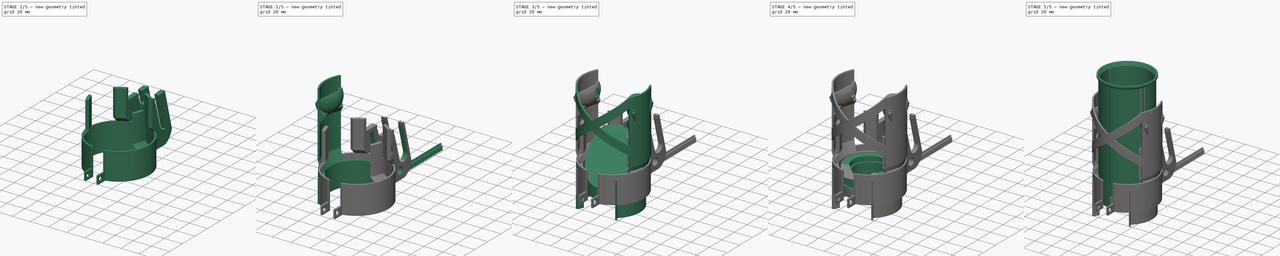
[diagram: build sequence overview — one tinted view per stage of 5, left to right]
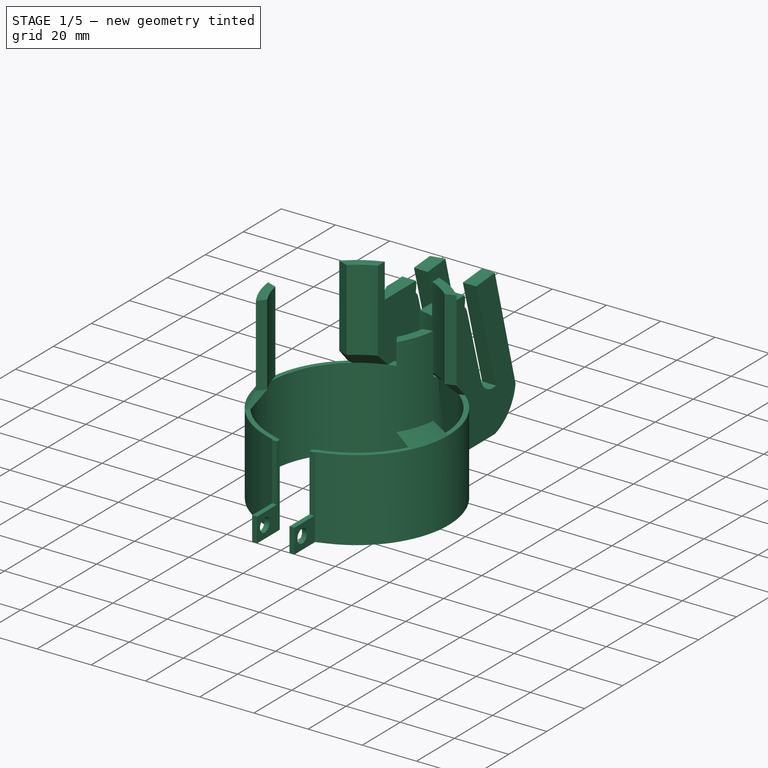
[diagram: stage 1 of 5 — iso view after this stage's code; geometry added in this stage tinted green]
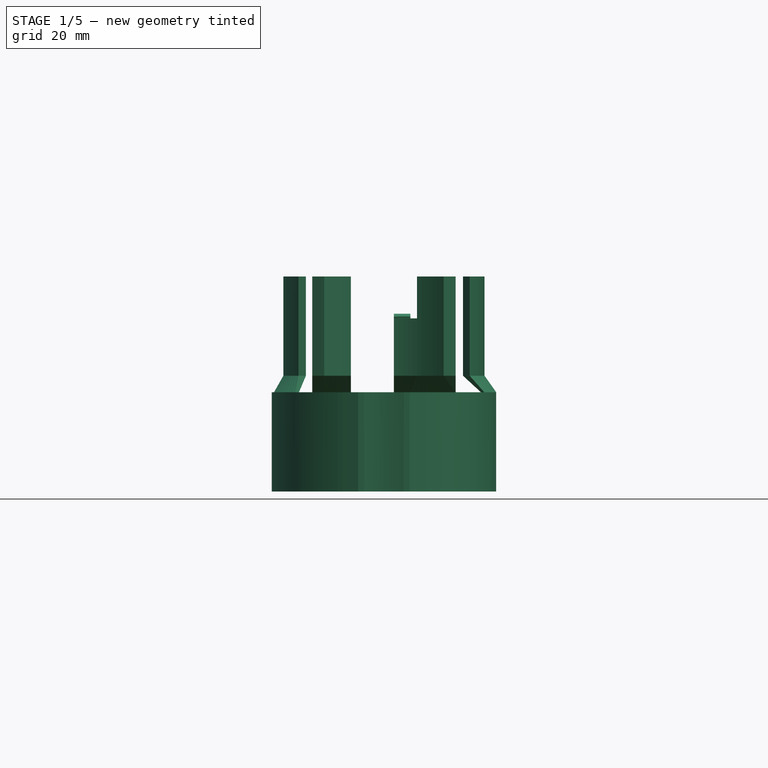
[diagram: stage 1 of 5 — front view after this stage's code; geometry added in this stage tinted green]
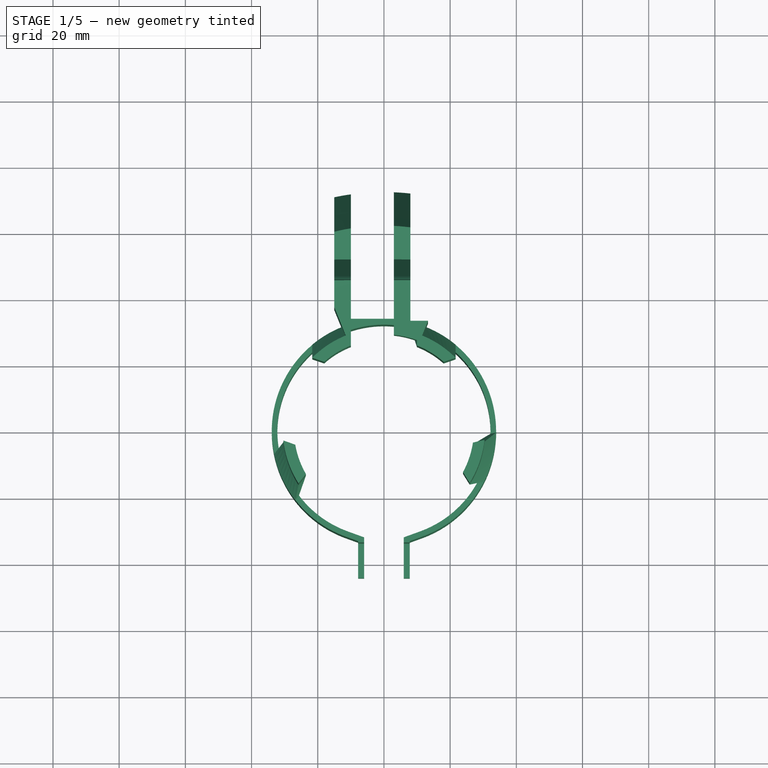
[diagram: stage 1 of 5 — top view after this stage's code; geometry added in this stage tinted green]
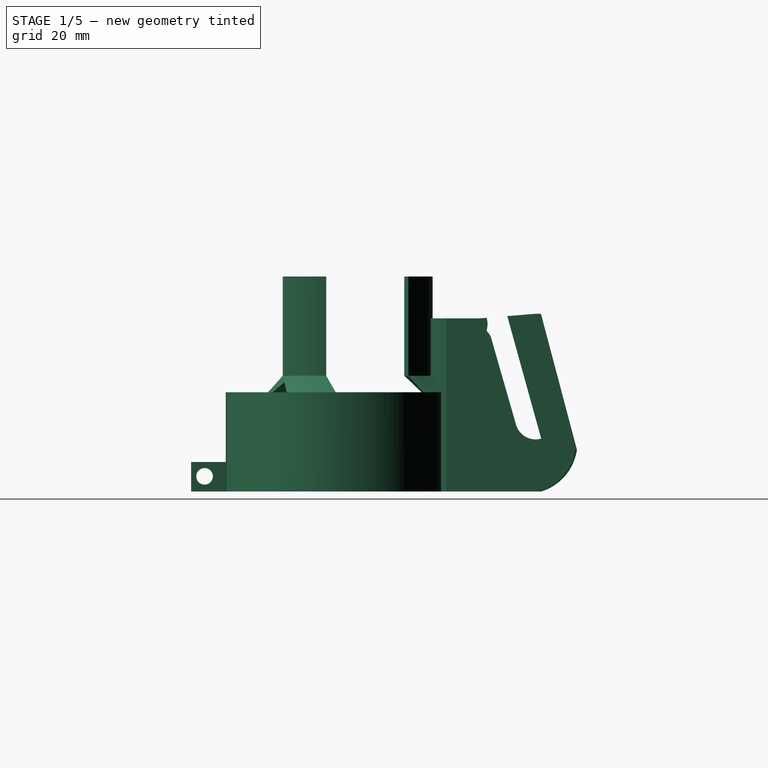
[diagram: stage 1 of 5 — right view after this stage's code; geometry added in this stage tinted green]
FCSTD DOCUMENT  (FreeCAD 0.21R33694 (Git))
Label: the-poor-mans-telescope-focuser
License: All rights reserved
LicenseURL: http://en.wikipedia.org/wiki/All_rights_reserved
objects: Sketcher::SketchObject×48, PartDesign::Pocket×18, PartDesign::Pad×11, PartDesign::Mirrored×10, PartDesign::Body×7, PartDesign::Plane×6, PartDesign::Revolution×6, App::Part×6, PartDesign::Groove×4, PartDesign::ShapeBinder×3, PartDesign::FeatureBase×2, PartDesign::PolarPattern×2, Spreadsheet::Sheet×1, PartDesign::AdditiveLoft×1, PartDesign::SubtractiveLoft×1, PartDesign::AdditiveHelix×1, PartDesign::FeaturePython×1, PartDesign::Chamfer×1
note: 165 computed .brp shape members not serialized (recipe doc carries the construction recipe); baked Part::Feature solids carry a one-line shape summary decoded from their .brp

FEATURE [Spreadsheet::Sheet] Spreadsheet
  cells = A1='LENS SETTINGS; A2='Objective focal length; B2(objective_focal_length)=500; C2='The focal length of the objective lens; D2=400; E2=300; A3='Objective lens radius; B3(objective_lens_radius)=40.5; C3='The diameter of the objective lens; D3=40.5; E3=25.3; A4='objective lens thickness; B4(objective_lens_thickness)=11.03; C4='The outher thickness of the objective lens; D4=7; E4=2.1; A5='Length of focal point from the end of the tube; B5(length_from_tube_to_focal_point)=96; A7='Eyepiece holder radius; B7(eyepiece_holder_radius)=30; D7=25; E7=12; A8='Epepiece lens radius; B8(eyepiece_lens_radius)=10.1; C8='The radious of the eyepiece / okular lens; D8=10.1; E8=10.1; A9='Eyepiece lens thickness; B9(eyepiece_lens_thickness)=2; A10='Eyepiece lens focal length; B10(eyepiece_lens_focal_length)=15; C10='The focal length of the eyepiece / okular lens; A11='Eyepiece radious; B11(eyepiece_radious)==31.75 / 2; C11='The standard is a diamter of 1,25" inch = 3,175 cm; A13='Firs tube section radius; B13(first_tube_section_radius)==eyepiece_holder_radius + wall_thickness + gap; A14='Second tube section radius; B14(second_tube_section_radius)==eyepiece_holder_radius + wall_thickness * 3 + gap * 2; A15='Third tube section radius; B15(third_tube_section_radius)==eyepiece_holder_radius + wall_thickness * 5 + gap * 3; A17='TWEAKING SETTINGS; A18='Snap joint angle; B18(snap_joint_angle)=135; A19='Angle; B19(angle)=45; C19='Angle used for overhang; A20='Thickness; B20(wall_thickness)=1.8; C20='Wall thickness ( three layers ); A21='Gap; B21(gap)=0.6; C21='Gap between bodies; A22='Nr of layers; B22(nr_of_layers)=3; C22='The total number of solid parts that the tube is built up by; A23='layer; B23(layer)=0; C23='The number of this layer; A24='Tube overlap; B24=4.8; A25='CALCULATED VALUES; A26='Focal tube length; B26(focuser_tube_length)==tube_overlap + eyepiece_lens_focal_length + focal_point_offset_from_tube - 40; A27='length; B27(length)==(tube_overlap * nr_of_layers + objective_focal_length - objective_distance_from_tube - focal_point_offset_from_tube) / nr_of_layers; A28='Inner radius; B28(radious)==eyepiece_holder_radius + wall_thickness * 3 + gap; A29='Eyepiece outher radius; B29(eypiece_outher_radius)==eyepiece_holder_radius + wall_thickness; A30='objective distance from tube; B30(objective_distance_from_tube)=0; A31='tube outher radious; B31(tube_outher_ciel_radious)==radious + (nr_of_layers - 1) * (gap + wall_thickness * 2); C31='The  radius of the thickes part of the tube; A32='tube outher radious; B32(tube_outher_flor_radious)==radious + layer * (gap + wall_thickness * 2); C32='The  radius of the thinest part of the tube; B33(mount_radius)==radious + 1 * (gap + wall_thickness * 2) - 1; A34='Magnification; B34==objective_focal_length / eyepiece_lens_focal_length; A35='Objective inner radious; B35(objective_inner_radious)==tube_outher_ciel_radious + wall_thickness - 0; A36='Objectie inner radius for lens snap connection; B36(objectibe_outher_snap_connection_radious_for_lens)==(objective_lens_radius > objective_inner_radious ? objective_lens_radius : objective_inner_radious) + wall_thickness + gap; A37='fA; B37(fA)==90 deg; A38='fB; B38(fB)==atan2(objective_focal_length; objective_lens_radius); A39='fC; B39(fC)==180 deg - fA - fB; A40='Distance to focal point after tube; B40(focal_point_offset_from_tube)=150; B41(tube_overlap)=4.8; B42==eyepiece_lens_radius * sin(fB) / sin(fC); A43='Rack gear width; B43(rack_gear_width)==10 - wall_thickness * 2 - 1.2
FEATURE [PartDesign::Plane] DatumPlane011
  Length = 86.5708
  Placement = pos=(0,0,30) rot=(0,0,1;0rad)
  ResizeMode = 0
  Width = 149.348
FEATURE [PartDesign::Plane] DatumPlane012
  Length = 86.5708
  Placement = pos=(0,0,35) rot=(0,0,1;0rad)
  ResizeMode = 0
  Width = 149.348
FEATURE [Sketcher::SketchObject] Sketch064
  FullyConstrained = true
  MapMode = 5
  Support = -> [XY_Plane030]
  expr: Constraints[1] = Spreadsheet.first_tube_section_radius - 0.2
  expr: Constraints[30] = Spreadsheet.wall_thickness
  expr: Constraints[31] = Spreadsheet.wall_thickness
  expr: Constraints[8] = Spreadsheet.wall_thickness
  sketch-geometry (12):
    g0: ArcOfCircle CenterX=0 CenterY=0 CenterZ=0 NormalX=0 NormalY=0 NormalZ=1 AngleXU=0 Radius=32.2 StartAngle=5.05998 EndAngle=10.648
    g1: ArcOfCircle CenterX=0 CenterY=0 CenterZ=0 NormalX=0 NormalY=0 NormalZ=1 AngleXU=0 Radius=33.8979 StartAngle=5.04189 EndAngle=10.6661
    g2: LineSegment StartX=-10.9683 StartY=-30.2744 StartZ=0 EndX=-6 EndY=-32.0744 EndZ=0
    g3: LineSegment StartX=10.9683 StartY=-30.2744 StartZ=0 EndX=6 EndY=-32.0744 EndZ=0
    g4: LineSegment StartX=-7.8 StartY=-44.0744 StartZ=0 EndX=-6 EndY=-44.0744 EndZ=0
    g5: LineSegment StartX=-6 StartY=-44.0744 StartZ=0 EndX=-6 EndY=-32.0744 EndZ=0
    g6: LineSegment StartX=7.8 StartY=-44.0744 StartZ=0 EndX=6 EndY=-44.0744 EndZ=0
    g7: LineSegment StartX=6 StartY=-44.0744 StartZ=0 EndX=6 EndY=-32.0744 EndZ=0
    g8: LineSegment StartX=-10.9683 StartY=-32.0744 StartZ=0 EndX=-7.8 EndY=-33.2222 EndZ=0
    g9: LineSegment StartX=10.9683 StartY=-32.0744 StartZ=0 EndX=7.8 EndY=-33.2222 EndZ=0
    g10: LineSegment StartX=-7.8 StartY=-33.2222 StartZ=0 EndX=-7.8 EndY=-44.0744 EndZ=0
    g11: LineSegment StartX=7.8 StartY=-33.2222 StartZ=0 EndX=7.8 EndY=-44.0744 EndZ=0
  constraints (34):
    c: Coincident(g0,g-1)
    c: Radius(g0) = 32.2
    c: Coincident(g1,g0)
    c: Vertical(g0,g1)
    c: Symmetric(g0,g0,g-2)
    c: Tangent(g0,g2) = -1.5708
    c: Tangent(g3,g0) = 1.5708
    c: Horizontal(g1,g3)
    c: DistanceY(g1,g0) = 1.8
    c: Horizontal(g4)
    c: Coincident(g4,g5)
    c: Coincident(g5,g2)
    c: Coincident(g6,g7)
    c: Coincident(g7,g3)
    c: Vertical(g7)
    c: Vertical(g5)
    c: Horizontal(g6,g6)
    c: Horizontal(g6,g4)
    c: Coincident(g8,g1)
    c: Coincident(g9,g1)
    c: Parallel(g9,g3)
    c: Parallel(g8,g2)
    c: Coincident(g10,g8)
    c: Coincident(g10,g4)
    c: Coincident(g11,g9)
    c: Coincident(g11,g6)
    c: Vertical(g11)
    c: Vertical(g10)
    c: DistanceY(g5,g5) = 12
    c: Vertical(g0,g1)
    c: DistanceX(g3,g9) = 1.8
    c: DistanceX(g8,g2) = 1.8
    c: Horizontal(g2,g3)
    c: DistanceX(g2) = -6
FEATURE [PartDesign::Pad] Pad010
  Direction = (0,0,1)
  Length = 30
  Length2 = 100
  Profile = -> Sketch064
  Type = 0
FEATURE [Sketcher::SketchObject] Sketch066
  FullyConstrained = true
  MapMode = 5
  Placement = pos=(0,0,30) rot=(0,0,1;0rad)
  Support = -> [DatumPlane011]
  expr: Constraints[11] = Spreadsheet.first_tube_section_radius - 0.2
  expr: Constraints[8] = 8
  expr: Constraints[9] = Spreadsheet.wall_thickness
  sketch-geometry (4):
    g0: ArcOfCircle CenterX=0 CenterY=0 CenterZ=0 NormalX=0 NormalY=0 NormalZ=1 AngleXU=0 Radius=33.9465 StartAngle=0.879108 EndAngle=1.33289
    g1: ArcOfCircle CenterX=0 CenterY=0 CenterZ=0 NormalX=0 NormalY=0 NormalZ=1 AngleXU=0 Radius=32.2 StartAngle=0.918294 EndAngle=1.31972
    g2: LineSegment StartX=8 StartY=31.1904 StartZ=0 EndX=8 EndY=32.9904 EndZ=0
    g3: LineSegment StartX=21.6524 StartY=26.1446 StartZ=0 EndX=19.5511 EndY=25.5851 EndZ=0
  constraints (12):
    c: Coincident(g0,g-1)
    c: Coincident(g1,g0)
    c: Coincident(g2,g1)
    c: Coincident(g2,g0)
    c: Coincident(g3,g0)
    c: Coincident(g3,g1)
    c: Angle(g0) = 0.453786
    c: Vertical(g2)
    c: DistanceX(g-1,g0) = 8
    c: DistanceY(g2,g2) = 1.8
    c: Angle(g1) = 0.401426
    c: Radius(g1) = 32.2
FEATURE [Sketcher::SketchObject] Sketch067
  FullyConstrained = true
  MapMode = 5
  Placement = pos=(0,0,35) rot=(0,0,1;0rad)
  Support = -> [DatumPlane012]
  expr: Constraints[11] = Spreadsheet.eyepiece_holder_radius - Spreadsheet.wall_thickness - 1
  expr: Constraints[7] = Spreadsheet.wall_thickness * 2
  sketch-geometry (4):
    g0: ArcOfCircle CenterX=0 CenterY=0 CenterZ=0 NormalX=0 NormalY=0 NormalZ=1 AngleXU=0 Radius=30.5765 StartAngle=0.783832 EndAngle=1.23762
    g1: ArcOfCircle CenterX=0 CenterY=0 CenterZ=0 NormalX=0 NormalY=0 NormalZ=1 AngleXU=0 Radius=27.2 StartAngle=0.845253 EndAngle=1.19432
    g2: LineSegment StartX=10 StartY=25.2951 StartZ=0 EndX=10 EndY=28.8951 EndZ=0
    g3: LineSegment StartX=21.6547 StartY=21.587 StartZ=0 EndX=18.0483 EndY=20.3494 EndZ=0
  constraints (12):
    c: Coincident(g0,g-1)
    c: Coincident(g1,g0)
    c: Coincident(g2,g1)
    c: Coincident(g2,g0)
    c: Coincident(g3,g0)
    c: Coincident(g3,g1)
    c: Vertical(g2)
    c: DistanceY(g2,g2) = 3.6
    c: DistanceX(g-1,g0) = 10
    c: Angle(g1) = 0.349066
    c: Angle(g0) = 0.453786
    c: Radius(g1) = 27.2
FEATURE [PartDesign::AdditiveLoft] AdditiveLoft001
  BaseFeature = -> Pad010
  Closed = false
  Profile = -> Sketch067
  Ruled = false
  Sections = -> [Sketch066]
FEATURE [PartDesign::Pad] Pad012
  BaseFeature = -> AdditiveLoft001
  Direction = (0,0,1)
  Length = 30
  Length2 = 100
  Profile = -> Sketch067
  Type = 0
FEATURE [PartDesign::Body] Body018
  Group = -> [InvoluteRack,Sketch119,Sketch098,Sketch099,Pad033,Pocket027,Sketch120,Pad034,Chamfer002]
  Origin = -> Origin028
  Tip = -> Chamfer002
FEATURE [App::Part] Part009  label="Rack-gear"
  Group = -> [Body018]
  Origin = -> Origin027
  Placement = pos=(-100,-162,0) rot=(0,0,1;0rad)
FEATURE [Sketcher::SketchObject] Sketch121  label="mirror-line-focuser-gear"
  ExternalGeometry = -> [Sketch072]
  FullyConstrained = false
  MapMode = 5
  Placement = pos=(0,0,0) rot=(0.57735,0.57735,0.57735;2.0944rad)
  Support = -> [YZ_Plane030]
  sketch-geometry (2):
    g0: LineSegment StartX=61.7056 StartY=16 StartZ=0 EndX=49.5599 EndY=59.8931 EndZ=0
    g1: LineSegment StartX=49.5599 StartY=59.8931 StartZ=0 EndX=49.215 EndY=61.1393 EndZ=0
  constraints (3):
    c: Coincident(g0,g-3)
    c: Coincident(g0,g-4)
    c: Tangent(g1,g0) = -1.5708
FEATURE [Sketcher::SketchObject] Sketch122
  FullyConstrained = false
  MapMode = 5
  Placement = pos=(0,0,0) rot=(0.57735,0.57735,0.57735;2.0944rad)
  Support = -> [YZ_Plane030]
  sketch-geometry (9):
    g0: ArcOfCircle CenterX=40.9904 CenterY=20 CenterZ=0 NormalX=0 NormalY=0 NormalZ=1 AngleXU=0 Radius=5 StartAngle=8.92e-14 EndAngle=3.14159
    g1: ArcOfCircle CenterX=40.9904 CenterY=10 CenterZ=0 NormalX=0 NormalY=0 NormalZ=1 AngleXU=0 Radius=5 StartAngle=3.14159 EndAngle=6.28319
    g2: LineSegment StartX=35.9904 StartY=20 StartZ=0 EndX=35.9904 EndY=10 EndZ=0
    g3: LineSegment StartX=45.9904 StartY=10 StartZ=0 EndX=45.9904 EndY=20 EndZ=0
    g4: ArcOfCircle CenterX=36.9904 CenterY=46.0482 CenterZ=0 NormalX=0 NormalY=0 NormalZ=1 AngleXU=0 Radius=2.82291 StartAngle=0.277392 EndAngle=3.41898
    g5: ArcOfCircle CenterX=40.9904 CenterY=32 CenterZ=0 NormalX=0 NormalY=0 NormalZ=1 AngleXU=0 Radius=2.82291 StartAngle=3.41898 EndAngle=6.56058
    g6: LineSegment StartX=34.2754 StartY=45.2752 StartZ=0 EndX=38.2754 EndY=31.2269 EndZ=0
    g7: LineSegment StartX=43.7054 StartY=32.7731 StartZ=0 EndX=39.7054 EndY=46.8213 EndZ=0
    g8: Circle CenterX=54.7322 CenterY=9 CenterZ=0 NormalX=0 NormalY=0 NormalZ=1 AngleXU=0 Radius=4
  constraints (20):
    c: Tangent(g0,g2) = -1.5708
    c: Tangent(g2,g1) = -1.5708
    c: Tangent(g1,g3) = -1.5708
    c: Tangent(g3,g0) = -1.5708
    c: Equal(g0,g1)
    c: Vertical(g2)
    c: DistanceY(g2,g2) = 10
    c: DistanceX(g0,g0) = 10
    c: DistanceY(g-1,g1) = 10
    c: Tangent(g4,g6) = -1.5708
    c: Tangent(g6,g5) = -1.5708
    c: Tangent(g5,g7) = -1.5708
    c: Tangent(g7,g4) = -1.5708
    c: Equal(g4,g5)
    c: Vertical(g5,g0)
    c: DistanceY(g0,g5) = 12
    c: DistanceX(g4,g5) = 4
    c: DistanceX(g4,g4) = 5.43
    c: DistanceY(g8,g1) = 1
    c: Radius(g8) = 4
FEATURE [PartDesign::ShapeBinder] ShapeBinder002
  Placement = pos=(0,0,30) rot=(0,0,1;0rad)
  Support = -> [Sketch066]
  TraceSupport = false
FEATURE [Sketcher::SketchObject] Sketch123
  ExternalGeometry = -> [Sketch066,Sketch072,Sketch067]
  FullyConstrained = false
  MapMode = 5
  Placement = pos=(0,0,0) rot=(0.57735,0.57735,0.57735;2.0944rad)
  Support = -> [YZ_Plane030]
  sketch-geometry (8):
    g0: LineSegment StartX=28.8951 StartY=35 StartZ=0 EndX=32.9904 EndY=30 EndZ=0
    g1: LineSegment StartX=32.9904 StartY=30 StartZ=0 EndX=32.9904 EndY=0 EndZ=0
    g2: LineSegment StartX=32.9904 StartY=0 StartZ=0 EndX=61.7056 EndY=7.1e-15 EndZ=0
    g3: LineSegment StartX=45.2727 StartY=52.3257 StartZ=0 EndX=61.7056 EndY=53.7347 EndZ=0
    g4: LineSegment StartX=61.7056 StartY=53.7347 StartZ=0 EndX=72.5608 EndY=12.6529 EndZ=0
    g5: LineSegment StartX=28.8951 StartY=35 StartZ=0 EndX=28.8951 EndY=52.3257 EndZ=0
    g6: LineSegment StartX=28.8951 StartY=52.3257 StartZ=0 EndX=45.2727 EndY=52.3257 EndZ=0
    g7: ArcOfCircle CenterX=57.2026 CenterY=14.8461 CenterZ=0 NormalX=0 NormalY=0 NormalZ=1 AngleXU=0 Radius=15.514 StartAngle=5.00688 EndAngle=6.14134
  constraints (19):
    c: Coincident(g0,g-3)
    c: Coincident(g1,g0)
    c: PointOnObject(g1,g-1)
    c: Vertical(g1)
    c: Coincident(g2,g1)
    c: PointOnObject(g2,g-1)
    c: Vertical(g2,g-4)
    c: Vertical(g3,g2)
    c: Coincident(g4,g3)
    c: Coincident(g5,g0)
    c: Vertical(g5)
    c: Coincident(g6,g5)
    c: Coincident(g6,g3)
    c: Horizontal(g6)
    c: Coincident(g-5,g3)
    c: Coincident(g0,g-6)
    c: Coincident(g7,g2)
    c: Angle(g7) = 1.13446
    c: Coincident(g4,g7)
FEATURE [PartDesign::Revolution] Revolution031
  Angle = 44
  Axis = (-2e-16,3e-16,1)
  Base = (0,0,0)
  BaseFeature = -> Pad012
  Midplane = true
  Profile = -> Sketch123
  ReferenceAxis = -> Sketch123 [V_Axis]
  Reversed = true
FEATURE [PartDesign::Pocket] Pocket006  label="pocket-focuser-gear"
  BaseFeature = -> Revolution031
  Direction = (-1,2e-16,-3e-16)
  Length = 5
  Length2 = 100
  Midplane = true
  Profile = -> Sketch072
  Type = 1
FEATURE [PartDesign::Pocket] Pocket010
  BaseFeature = -> Pocket006
  Direction = (-1,2e-16,-3e-16)
  Length = 5
  Length2 = 100
  Midplane = true
  Profile = -> Sketch081
  Type = 1
FEATURE [PartDesign::Pocket] Pocket
  BaseFeature = -> Pocket010
  Direction = (-1,2e-16,-3e-16)
  Length = 5
  Length2 = 5
  Midplane = true
  Profile = -> Sketch
  ReferenceAxis = -> Sketch [N_Axis]
  Type = 1
FEATURE [PartDesign::PolarPattern] PolarPattern001
  Angle = 283
  Axis = -> Sketch067 [N_Axis]
  BaseFeature = -> Pocket
  Occurrences = 3
  Originals = -> [AdditiveLoft001,Pad012]
FEATURE [PartDesign::Mirrored] Mirrored019
  BaseFeature = -> PolarPattern001
  MirrorPlane = -> Sketch067 [V_Axis]
  Originals = -> [AdditiveLoft001,Pad012]
FEATURE [Sketcher::SketchObject] Sketch124
  ExternalGeometry = -> [Sketch067,Sketch066]
  FullyConstrained = false
  MapMode = 5
  Placement = pos=(0,0,0) rot=(0.57735,0.57735,0.57735;2.0944rad)
  Support = -> [YZ_Plane030]
  sketch-geometry (7):
    g0: LineSegment StartX=33.9904 StartY=0 StartZ=0 EndX=86.4633 EndY=0 EndZ=0
    g1: LineSegment StartX=86.4633 StartY=0 StartZ=0 EndX=86.4633 EndY=61.4652 EndZ=0
    g2: LineSegment StartX=86.4633 StartY=61.4652 StartZ=0 EndX=16.1702 EndY=61.4652 EndZ=0
    g3: LineSegment StartX=33.9904 StartY=30 StartZ=0 EndX=16.1702 EndY=30 EndZ=0
    g4: LineSegment StartX=16.1702 StartY=30 StartZ=0 EndX=16.1702 EndY=34.5697 EndZ=0
    g5: LineSegment StartX=16.1702 StartY=34.5697 StartZ=0 EndX=16.1702 EndY=61.4652 EndZ=0
    g6: LineSegment StartX=33.9904 StartY=30 StartZ=0 EndX=33.9904 EndY=0 EndZ=0
  constraints (17):
    c: PointOnObject(g0,g-1)
    c: PointOnObject(g0,g-1)
    c: Coincident(g0,g1)
    c: Vertical(g1)
    c: Coincident(g1,g2)
    c: Horizontal(g2)
    c: Horizontal(g3)
    c: Coincident(g3,g4)
    c: Vertical(g4)
    c: Coincident(g4,g5)
    c: Coincident(g5,g2)
    c: Vertical(g5)
    c: DistanceX(g-4,g3) = 1
    c: Horizontal(g3,g-4)
    c: Coincident(g6,g3)
    c: Coincident(g6,g0)
    c: Vertical(g6)
FEATURE [PartDesign::Pocket] Pocket029
  BaseFeature = -> Mirrored019
  Direction = (-1,2e-16,-3e-16)
  Length = 10
  Length2 = 5
  Profile = -> Sketch124
  ReferenceAxis = -> Sketch124 [N_Axis]
  Type = 0
FEATURE [PartDesign::Pocket] Pocket030
  BaseFeature = -> Pocket029
  Direction = (-1,2e-16,-3e-16)
  Length = 3
  Length2 = 5
  Profile = -> Sketch124
  ReferenceAxis = -> Sketch124 [N_Axis]
  Reversed = true
  Type = 0
FEATURE [Sketcher::SketchObject] Sketch125
  ExternalGeometry = -> [Sketch066]
  FullyConstrained = true
  MapMode = 5
  Support = -> [XY_Plane030]
  sketch-geometry (8):
    g0: LineSegment StartX=8 StartY=82.9904 StartZ=0 EndX=29 EndY=82.9904 EndZ=0
    g1: LineSegment StartX=29 StartY=82.9904 StartZ=0 EndX=29 EndY=32.9904 EndZ=0
    g2: LineSegment StartX=29 StartY=32.9904 StartZ=0 EndX=8 EndY=32.9904 EndZ=0
    g3: LineSegment StartX=8 StartY=32.9904 StartZ=0 EndX=8 EndY=82.9904 EndZ=0
    g4: LineSegment StartX=-15 StartY=82.9904 StartZ=0 EndX=-36 EndY=82.9904 EndZ=0
    g5: LineSegment StartX=-36 StartY=82.9904 StartZ=0 EndX=-36 EndY=32.9904 EndZ=0
    g6: LineSegment StartX=-36 StartY=32.9904 StartZ=0 EndX=-15 EndY=32.9904 EndZ=0
    g7: LineSegment StartX=-15 StartY=32.9904 StartZ=0 EndX=-15 EndY=82.9904 EndZ=0
  constraints (24):
    c: Coincident(g0,g1)
    c: Coincident(g1,g2)
    c: Coincident(g2,g3)
    c: Coincident(g3,g0)
    c: Horizontal(g0)
    c: Horizontal(g2)
    c: Vertical(g1)
    c: Vertical(g3)
    c: Coincident(g4,g5)
    c: Coincident(g5,g6)
    c: Coincident(g6,g7)
    c: Coincident(g7,g4)
    c: Horizontal(g4)
    c: Horizontal(g6)
    c: Vertical(g5)
    c: Vertical(g7)
    c: Horizontal(g2,g-4)
    c: Horizontal(g-4,g6)
    c: Horizontal(g4,g0)
    c: DistanceX(g-1,g0) = 8
    c: DistanceX(g0,g0) = 21
    c: DistanceY(g1,g1) = 50
    c: Equal(g0,g4)
    c: DistanceX(g4,g-1) = 15
FEATURE [PartDesign::Pocket] Pocket031
  BaseFeature = -> Pocket030
  Direction = (0,0,-1)
  Length = 5
  Length2 = 5
  Midplane = true
  Profile = -> Sketch125
  ReferenceAxis = -> Sketch125 [N_Axis]
  Type = 1
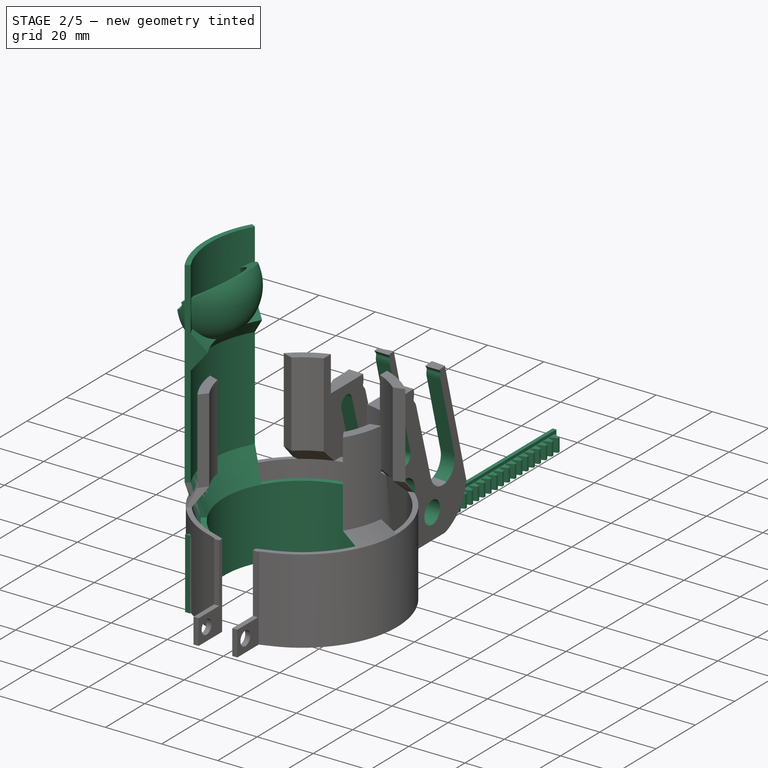
[diagram: stage 2 of 5 — iso view after this stage's code; geometry added in this stage tinted green]
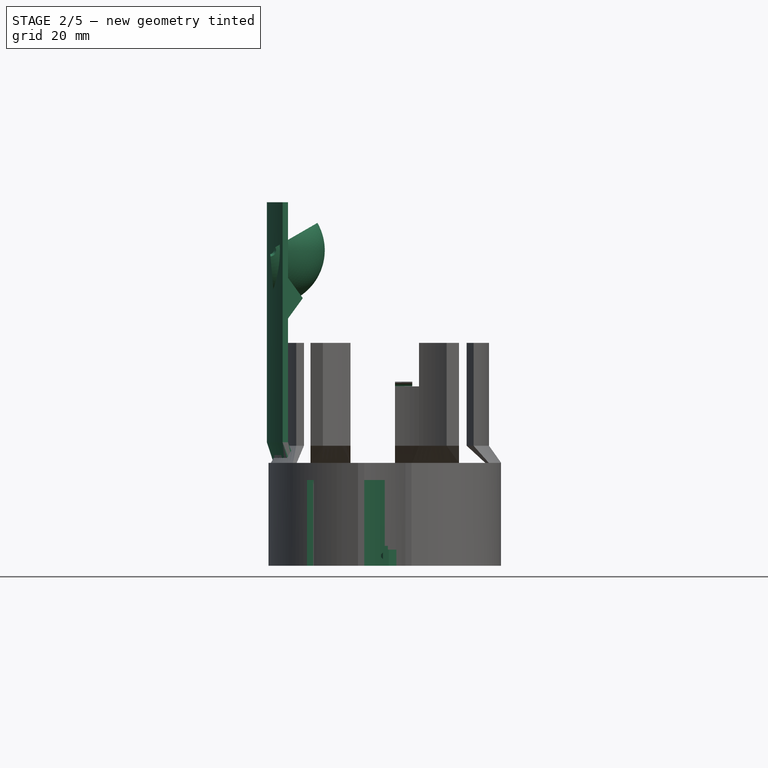
[diagram: stage 2 of 5 — front view after this stage's code; geometry added in this stage tinted green]
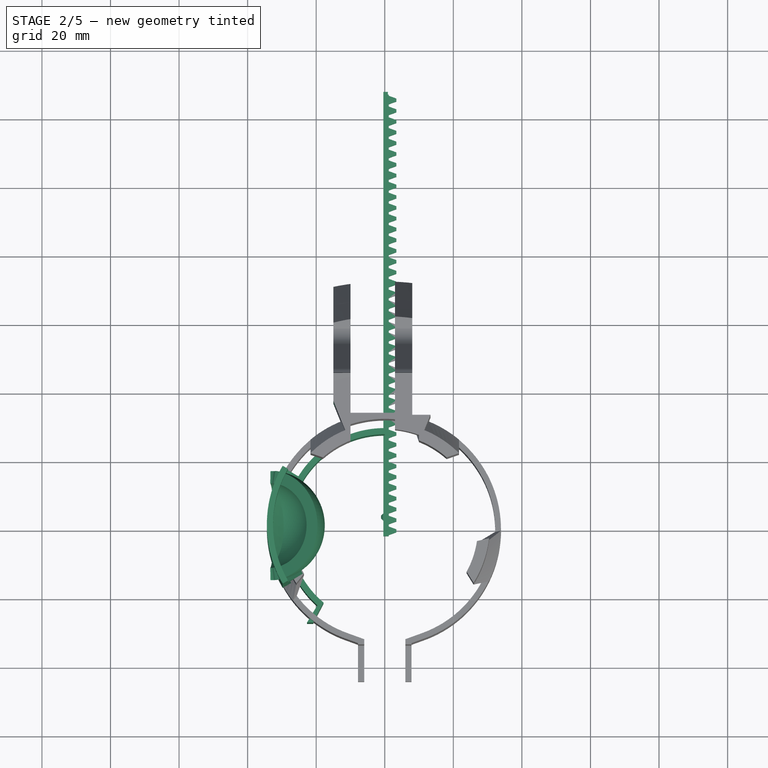
[diagram: stage 2 of 5 — top view after this stage's code; geometry added in this stage tinted green]
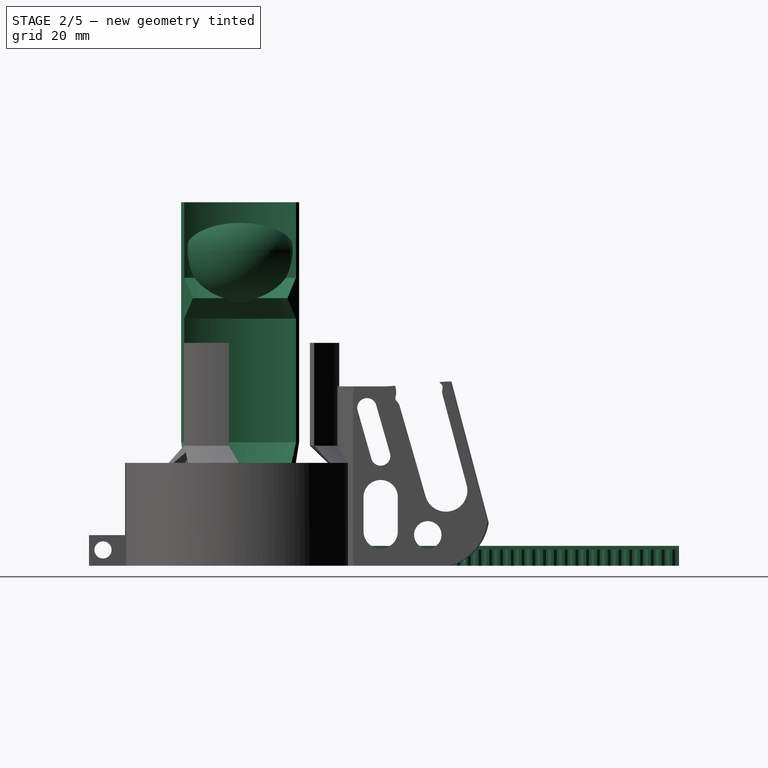
[diagram: stage 2 of 5 — right view after this stage's code; geometry added in this stage tinted green]
FEATURE [PartDesign::Body] Body
  BaseFeature = -> Mirrored014
  Group = -> [Clone,Sketch092,Pocket016,Sketch093,Pad,PolarPattern,Sketch094,Pocket017,Sketch096,Pocket018,Sketch097,Pad020]
  Origin = -> Origin
  Placement = pos=(-125,-200,0) rot=(0,0,1;0rad)
  Tip = -> Pad020
FEATURE [App::Part] Part  label="2-5-adapter"
  Group = -> [Body]
  Origin = -> Origin037
FEATURE [Sketcher::SketchObject] Sketch098  label="rack-gear-base"
  FullyConstrained = true
  MapMode = 5
  Placement = pos=(0,0,0) rot=(1,0,0;1.5708rad)
  Support = -> [XZ_Plane028]
  expr: Constraints[3] = 10 - Spreadsheet.wall_thickness * 2 - Spreadsheet.gap
  expr: Constraints[4] = 10 - Spreadsheet.wall_thickness * 2 - 1.3
  expr: Constraints[5] = (Spreadsheet.eyepiece_holder_radius - Spreadsheet.wall_thickness - 0.1 - (Spreadsheet.eyepiece_holder_radius - 5) - 0.5) / 2
  sketch-geometry (5):
    g0: LineSegment StartX=-0.4 StartY=5.8 StartZ=0 EndX=0.9 EndY=5.8 EndZ=0
    g1: LineSegment StartX=-0.4 StartY=5.1 StartZ=0 EndX=-0.4 EndY=5.8 EndZ=0
    g2: LineSegment StartX=0.9 StartY=0 StartZ=0 EndX=-0.4 EndY=0 EndZ=0
    g3: LineSegment StartX=-0.4 StartY=0 StartZ=0 EndX=-0.4 EndY=5.1 EndZ=0
    g4: LineSegment StartX=0.9 StartY=5.8 StartZ=0 EndX=0.9 EndY=0 EndZ=0
  constraints (15):
    c: Coincident(g1,g0)
    c: Horizontal(g0)
    c: Vertical(g1)
    c: DistanceY(g-1,g0) = 5.8
    c: DistanceY(g-1,g1) = 5.1
    c: DistanceX(g0,g0) = 1.3
    c: DistanceX(g0,g-1) = 0.4
    c: PointOnObject(g2,g-1)
    c: Horizontal(g2)
    c: Coincident(g2,g3)
    c: Coincident(g3,g1)
    c: Vertical(g3)
    c: Equal(g2,g0)
    c: Coincident(g4,g0)
    c: Coincident(g4,g2)
FEATURE [Sketcher::SketchObject] Sketch099
  FullyConstrained = true
  MapMode = 5
  Placement = pos=(0,0,0) rot=(0.57735,0.57735,0.57735;2.0944rad)
  Support = -> [YZ_Plane028]
  expr: Constraints[11] = (10 - Spreadsheet.wall_thickness * 2 - Spreadsheet.gap) / 2 - 1
  sketch-geometry (4):
    g0: LineSegment StartX=3 StartY=3.9 StartZ=0 EndX=5 EndY=3.9 EndZ=0
    g1: LineSegment StartX=5 StartY=3.9 StartZ=0 EndX=5 EndY=1.9 EndZ=0
    g2: LineSegment StartX=5 StartY=1.9 StartZ=0 EndX=3 EndY=1.9 EndZ=0
    g3: LineSegment StartX=3 StartY=1.9 StartZ=0 EndX=3 EndY=3.9 EndZ=0
  constraints (12):
    c: Coincident(g0,g1)
    c: Coincident(g1,g2)
    c: Coincident(g2,g3)
    c: Coincident(g3,g0)
    c: Horizontal(g0)
    c: Horizontal(g2)
    c: Vertical(g1)
    c: Vertical(g3)
    c: DistanceX(g-1,g0) = 3
    c: Equal(g1,g2)
    c: DistanceY(g1,g1) = 2
    c: DistanceY(g-1,g1) = 1.9
FEATURE [Sketcher::SketchObject] Sketch100
  FullyConstrained = true
  MapMode = 5
  Support = -> [XY_Plane040]
  expr: Constraints[16] = Spreadsheet.eyepiece_holder_radius - Spreadsheet.wall_thickness - 0.4
  expr: Constraints[2] = Spreadsheet.wall_thickness
  expr: Constraints[8] = Spreadsheet.wall_thickness
  expr: Constraints[9] = Spreadsheet.wall_thickness
  sketch-geometry (6):
    g0: ArcOfCircle CenterX=0 CenterY=0 CenterZ=0 NormalX=0 NormalY=0 NormalZ=1 AngleXU=0 Radius=29.6 StartAngle=1.5708 EndAngle=3.98555
    g1: ArcOfCircle CenterX=0 CenterY=0 CenterZ=0 NormalX=0 NormalY=0 NormalZ=1 AngleXU=0 Radius=27.8 StartAngle=1.5708 EndAngle=4.01426
    g2: LineSegment StartX=-17.8695 StartY=-21.296 StartZ=0 EndX=-20.8695 EndY=-27.1195 EndZ=0
    g3: LineSegment StartX=-20.8695 StartY=-27.1195 StartZ=0 EndX=-22.6695 EndY=-27.1195 EndZ=0
    g4: LineSegment StartX=-22.6695 StartY=-27.1195 StartZ=0 EndX=-19.6695 EndY=-22.1195 EndZ=0
    g5: LineSegment StartX=1.8e-15 StartY=29.6 StartZ=0 EndX=1.7e-15 EndY=27.8 EndZ=0
  constraints (18):
    c: Coincident(g0,g-1)
    c: Coincident(g1,g0)
    c: DistanceX(g0,g1) = 1.8
    c: Coincident(g1,g2)
    c: Coincident(g2,g3)
    c: Horizontal(g3)
    c: Coincident(g3,g4)
    c: Coincident(g4,g0)
    c: DistanceX(g3,g3) = 1.8
    c: DistanceY(g1,g0) = 1.8
    c: PointOnObject(g1,g-2)
    c: PointOnObject(g0,g-2)
    c: Coincident(g5,g0)
    c: Coincident(g5,g1)
    c: DistanceY(g3,g0) = 5
    c: DistanceX(g2,g1) = 3
    c: Radius(g1) = 27.8
    c: Angle(g1) = 2.44346
FEATURE [PartDesign::Pad] Pad023
  Direction = (0,0,1)
  Length = 25
  Length2 = 10
  Profile = -> Sketch100
  ReferenceAxis = -> Sketch100 [N_Axis]
  Type = 0
FEATURE [Sketcher::SketchObject] Sketch101
  FullyConstrained = true
  MapMode = 5
  Placement = pos=(0,0,0) rot=(1,0,0;1.5708rad)
  Support = -> [XZ_Plane040]
  expr: Constraints[14] = 64 / 2 + Spreadsheet.gap
  expr: Constraints[15] = Spreadsheet.eyepiece_holder_radius - Spreadsheet.wall_thickness - 0.4
  expr: Constraints[27] = Spreadsheet.wall_thickness
  expr: Constraints[5] = Spreadsheet.wall_thickness
  expr: Constraints[7] = Spreadsheet.wall_thickness
  sketch-geometry (10):
    g0: LineSegment StartX=-29.6 StartY=21 StartZ=0 EndX=-34.4 EndY=36 EndZ=0
    g1: LineSegment StartX=-34.4 StartY=36 StartZ=0 EndX=-34.4 EndY=106 EndZ=0
    g2: LineSegment StartX=-29.6 StartY=21 StartZ=0 EndX=-27.8 EndY=21 EndZ=0
    g3: LineSegment StartX=-32.6 StartY=106 StartZ=0 EndX=-34.4 EndY=106 EndZ=0
    g4: LineSegment StartX=-27.8 StartY=21 StartZ=0 EndX=-27.8 EndY=25 EndZ=0
    g5: LineSegment StartX=-27.8 StartY=25 StartZ=0 EndX=-32.6 EndY=36 EndZ=0
    g6: LineSegment StartX=-32.6 StartY=36 StartZ=0 EndX=-32.6 EndY=72.0825 EndZ=0
    g7: LineSegment StartX=-32.6 StartY=72.0825 StartZ=0 EndX=-27.6 EndY=78.0412 EndZ=0
    g8: LineSegment StartX=-27.6 StartY=78.0412 StartZ=0 EndX=-32.6 EndY=84 EndZ=0
    g9: LineSegment StartX=-32.6 StartY=84 StartZ=0 EndX=-32.6 EndY=106 EndZ=0
  constraints (30):
    c: Coincident(g0,g1)
    c: Vertical(g1)
    c: Coincident(g0,g2)
    c: Coincident(g3,g1)
    c: Horizontal(g5,g0)
    c: DistanceX(g3,g3) = 1.8
    c: Horizontal(g3)
    c: DistanceX(g2,g2) = 1.8
    c: Horizontal(g2)
    c: DistanceY(g0,g0) = 15
    c: Coincident(g4,g2)
    c: Vertical(g4)
    c: Coincident(g5,g4)
    c: DistanceY(g4,g4) = 4
    c: DistanceX(g5,g-1) = 32.6
    c: DistanceX(g2,g-1) = 27.8
    c: DistanceY(g-1,g4) = 25
    c: DistanceY(g5,g3) = 70
    c: Coincident(g5,g6)
    c: Vertical(g6)
    c: Coincident(g6,g7)
    c: Coincident(g7,g8)
    c: Coincident(g8,g9)
    c: Coincident(g9,g3)
    c: Vertical(g9)
    c: DistanceX(g6,g7) = 5
    c: Equal(g7,g8)
    c: DistanceX(g0,g5) = 1.8
    c: DistanceY(g9,g9) = 22
    c: Angle(g6,g7) = 2.44346
FEATURE [PartDesign::Revolution] Revolution
  Angle = 60
  Axis = (0,-2e-16,1)
  Base = (0,0,0)
  BaseFeature = -> Pad023
  Midplane = true
  Profile = -> Sketch101
  ReferenceAxis = -> Sketch101 [V_Axis]
FEATURE [PartDesign::Plane] DatumPlane
  Length = 71.0089
  Placement = pos=(0,0,92) rot=(0,0,1;0rad)
  ResizeMode = 0
  Width = 68.3283
FEATURE [Sketcher::SketchObject] Sketch102
  AttachmentOffset = pos=(-33.5,0,0) rot=(0,0,1;0rad)
  FullyConstrained = false
  MapMode = 5
  Placement = pos=(-33.5,0,92) rot=(0,0,1;0rad)
  Support = -> [DatumPlane]
  expr: .AttachmentOffset.Base.x = -(64 / 2 + Spreadsheet.gap + Spreadsheet.wall_thickness / 2)
  expr: Constraints[9] = Spreadsheet.wall_thickness * 2
  sketch-geometry (4):
    g0: ArcOfCircle CenterX=0 CenterY=0 CenterZ=0 NormalX=0 NormalY=0 NormalZ=1 AngleXU=0 Radius=16 StartAngle=4.82537 EndAngle=7.741
    g1: ArcOfCircle CenterX=0 CenterY=0 CenterZ=0 NormalX=0 NormalY=0 NormalZ=1 AngleXU=0 Radius=12.348 StartAngle=4.80238 EndAngle=7.76399
    g2: LineSegment StartX=1.10968 StartY=12.298 StartZ=0 EndX=1.80389 EndY=15.898 EndZ=0
    g3: LineSegment StartX=1.10968 StartY=-12.298 StartZ=0 EndX=1.80389 EndY=-15.898 EndZ=0
  constraints (10):
    c: Coincident(g0,g-1)
    c: Coincident(g1,g0)
    c: Vertical(g1,g1)
    c: Vertical(g0,g0)
    c: Coincident(g2,g1)
    c: Coincident(g2,g0)
    c: Coincident(g3,g1)
    c: Coincident(g3,g0)
    c: Radius(g0) = 16
    c: DistanceY(g1,g0) = 3.6
FEATURE [PartDesign::Plane] DatumPlane015
  AttachmentOffset = pos=(-20.8,0,51) rot=(0,1,0;1.5708rad)
  Length = 148.24
  MapMode = 2
  Placement = pos=(-17.8,0,92) rot=(0,1,0;1.5708rad)
  ResizeMode = 0
  Width = 73.9593
  expr: .AttachmentOffset.Base.x = -41.6 / 2
  expr: .Placement.Base.x = -20.8 + 3
FEATURE [PartDesign::Revolution] Revolution029
  Angle = 85
  Axis = (0,1,0)
  Base = (-33.5,0,92)
  BaseFeature = -> Revolution
  Profile = -> Sketch102
  ReferenceAxis = -> Sketch102 [V_Axis]
FEATURE [Sketcher::SketchObject] Sketch103
  FullyConstrained = true
  MapMode = 5
  Placement = pos=(-17.8,0,92) rot=(0,1,0;1.5708rad)
  Support = -> [DatumPlane015]
  expr: Constraints[5] = 5.2 mm
  sketch-geometry (4):
    g0: ArcOfCircle CenterX=-2.6 CenterY=1e-16 CenterZ=0 NormalX=0 NormalY=0 NormalZ=1 AngleXU=0 Radius=2.5 StartAngle=1.5708 EndAngle=4.71239
    g1: ArcOfCircle CenterX=2.6 CenterY=-1e-16 CenterZ=0 NormalX=0 NormalY=0 NormalZ=1 AngleXU=0 Radius=2.5 StartAngle=4.71239 EndAngle=7.85398
    g2: LineSegment StartX=-2.6 StartY=-2.5 StartZ=0 EndX=2.6 EndY=-2.5 EndZ=0
    g3: LineSegment StartX=2.6 StartY=2.5 StartZ=0 EndX=-2.6 EndY=2.5 EndZ=0
  constraints (8):
    c: Tangent(g0,g2) = -1.5708
    c: Tangent(g2,g1) = -1.5708
    c: Tangent(g1,g3) = -1.5708
    c: Tangent(g3,g0) = -1.5708
    c: DistanceY(g0,g0) = 5
    c: DistanceX(g0,g1) = 5.2
    c: Symmetric(g0,g1,g-2)
    c: Symmetric(g0,g0,g-1)
FEATURE [PartDesign::Revolution] Revolution030
  Angle = 30
  Axis = (0,1,0)
  Base = (-33.5,0,92)
  BaseFeature = -> Revolution029
  Profile = -> Sketch102
  ReferenceAxis = -> Sketch102 [V_Axis]
  Reversed = true
FEATURE [PartDesign::Body] Body024
  Group = -> [Sketch100,Pad023,Sketch101,Revolution,DatumPlane,Sketch102,DatumPlane015,Revolution029,Sketch103,Revolution030,Pocket021,ShapeBinder,Sketch104,AdditiveHelix,Mirrored,Mirrored015,Pad024,Mirrored016,Mirrored017]
  Origin = -> Origin040
  Tip = -> Mirrored017
FEATURE [App::Part] Part014  label="stream-cam-mount"
  Group = -> [Body024]
  Origin = -> Origin039
  Placement = pos=(182,0,0) rot=(0,0,1;0rad)
FEATURE [Sketcher::SketchObject] Sketch105
  FullyConstrained = true
  MapMode = 5
  Placement = pos=(0,0,0) rot=(0.57735,0.57735,0.57735;2.0944rad)
  Support = -> [YZ_Plane026]
  sketch-geometry (4):
    g0: LineSegment StartX=-30 StartY=70 StartZ=0 EndX=0 EndY=70 EndZ=0
    g1: LineSegment StartX=0 StartY=70 StartZ=0 EndX=0 EndY=40 EndZ=0
    g2: LineSegment StartX=0 StartY=40 StartZ=0 EndX=-30 EndY=40 EndZ=0
    g3: LineSegment StartX=-30 StartY=40 StartZ=0 EndX=-30 EndY=70 EndZ=0
  constraints (12):
    c: Coincident(g0,g1)
    c: Coincident(g1,g2)
    c: Coincident(g2,g3)
    c: Coincident(g3,g0)
    c: Horizontal(g0)
    c: Horizontal(g2)
    c: Vertical(g1)
    c: Vertical(g3)
    c: PointOnObject(g1,g-2)
    c: DistanceX(g0,g0) = 30
    c: DistanceY(g1,g1) = 30
    c: DistanceY(g-1,g2) = 40
FEATURE [PartDesign::ShapeBinder] ShapeBinder001
  Support = -> [Sketch072]
  TraceSupport = false
FEATURE [Sketcher::SketchObject] Sketch111
  ExternalGeometry = -> [Sketch072]
  FullyConstrained = true
  MapMode = 5
  Placement = pos=(0,0,0) rot=(0.57735,0.57735,0.57735;2.0944rad)
  Support = -> [YZ_Plane030]
  sketch-geometry (8):
    g0: LineSegment StartX=43.812 StartY=40.8257 StartZ=0 EndX=63.812 EndY=60.8257 EndZ=0
    g1: LineSegment StartX=63.812 StartY=60.8257 StartZ=0 EndX=66.812 EndY=57.8257 EndZ=0
    g2: LineSegment StartX=66.812 StartY=57.8257 StartZ=0 EndX=46.812 EndY=37.8257 EndZ=0
    g3: LineSegment StartX=46.812 StartY=37.8257 StartZ=0 EndX=43.812 EndY=40.8257 EndZ=0
    g4: LineSegment StartX=56.812 StartY=27.8257 StartZ=0 EndX=63.812 EndY=34.8257 EndZ=0
    g5: LineSegment StartX=63.812 StartY=34.8257 StartZ=0 EndX=66.812 EndY=31.8257 EndZ=0
    g6: LineSegment StartX=66.812 StartY=31.8257 StartZ=0 EndX=59.812 EndY=24.8257 EndZ=0
    g7: LineSegment StartX=59.812 StartY=24.8257 StartZ=0 EndX=56.812 EndY=27.8257 EndZ=0
  constraints (24):
    c: Coincident(g0,g1)
    c: Coincident(g1,g2)
    c: Coincident(g2,g3)
    c: Coincident(g3,g0)
    c: Coincident(g4,g5)
    c: Coincident(g5,g6)
    c: Coincident(g6,g7)
    c: Coincident(g7,g4)
    c: DistanceY(g1,g1) = 3
    c: DistanceX(g2,g4) = 10
    c: DistanceX(g0,g0) = 20
    c: Perpendicular(g1,g0)
    c: Perpendicular(g2,g1)
    c: Equal(g5,g1)
    c: Perpendicular(g4,g5)
    c: Perpendicular(g6,g5)
    c: Parallel(g5,g7)
    c: Parallel(g2,g4)
    c: Vertical(g4,g0)
    c: Angle(g-1,g6) = 0.785398
    c: Parallel(g3,g1)
    c: DistanceY(g4,g2) = 10
    c: DistanceY(g0,g-3) = 5.5
    c: DistanceX(g0,g-3) = 2.8
FEATURE [Sketcher::SketchObject] Sketch119
  FullyConstrained = false
  MapMode = 5
  Support = -> [XY_Plane028]
  sketch-geometry (4):
    g0: LineSegment StartX=3.06357 StartY=83.5012 StartZ=0 EndX=4.82357 EndY=83.5012 EndZ=0
    g1: LineSegment StartX=4.82357 StartY=83.5012 StartZ=0 EndX=4.82357 EndY=81.4924 EndZ=0
    g2: LineSegment StartX=4.82357 StartY=81.4924 StartZ=0 EndX=3.06357 EndY=81.4924 EndZ=0
    g3: LineSegment StartX=3.06357 StartY=81.4924 StartZ=0 EndX=3.06357 EndY=83.5012 EndZ=0
  constraints (9):
    c: Coincident(g0,g1)
    c: Coincident(g1,g2)
    c: Coincident(g2,g3)
    c: Coincident(g3,g0)
    c: Horizontal(g0)
    c: Horizontal(g2)
    c: Vertical(g1)
    c: Vertical(g3)
    c: DistanceX(g2,g2) = 1.76
FEATURE [PartDesign::FeaturePython] InvoluteRack  # WARN: FeaturePython — macro-defined, semantics opaque (R4)
  AttacherType = Attacher::AttachEngine3D
  Placement = pos=(2.4,0,0) rot=(0,0,1;0rad)
  add_endings = true
  beta = 0
  clearance = 0.25
  double_helix = false
  head = 0
  head_fillet = 0
  height = 4.7
  module = 1
  pressure_angle = 20
  properties_from_tool = false
  root_fillet = 0
  simplified = false
  teeth = 41
  thickness = 2.6
  transverse_pitch = 3.14159
  version = 0.0.4
FEATURE [PartDesign::Pad] Pad033
  BaseFeature = -> InvoluteRack
  Direction = (0,-1,-2e-16)
  Length = 128
  Length2 = 10
  Placement = pos=(2.4,0,0) rot=(0,0,1;0rad)
  Profile = -> Sketch098
  ReferenceAxis = -> Sketch098 [N_Axis]
  Reversed = true
  Type = 0
  expr: Length = Spreadsheet.focuser_tube_length - Spreadsheet.wall_thickness
FEATURE [Sketcher::SketchObject] Sketch120
  FullyConstrained = true
  MapMode = 5
  Placement = pos=(0,0,0) rot=(1,0,0;1.5708rad)
  Support = -> [XZ_Plane028]
  sketch-geometry (4):
    g0: LineSegment StartX=-3.4 StartY=6 StartZ=0 EndX=-0.4 EndY=6 EndZ=0
    g1: LineSegment StartX=-0.4 StartY=6 StartZ=0 EndX=-0.4 EndY=0 EndZ=0
    g2: LineSegment StartX=-0.4 StartY=0 StartZ=0 EndX=-3.4 EndY=0 EndZ=0
    g3: LineSegment StartX=-3.4 StartY=0 StartZ=0 EndX=-3.4 EndY=6 EndZ=0
  constraints (12):
    c: Coincident(g0,g1)
    c: Coincident(g1,g2)
    c: Coincident(g2,g3)
    c: Coincident(g3,g0)
    c: Horizontal(g0)
    c: Horizontal(g2)
    c: Vertical(g1)
    c: Vertical(g3)
    c: DistanceX(g0,g-1) = 0.4
    c: Horizontal(g1,g-1)
    c: DistanceX(g0,g0) = 3
    c: DistanceY(g3,g3) = 6
FEATURE [PartDesign::Pocket] Pocket027
  BaseFeature = -> Pad033
  Direction = (0,1,2e-16)
  Length = 5
  Length2 = 5
  Midplane = true
  Placement = pos=(2.4,0,0) rot=(0,0,1;0rad)
  Profile = -> Sketch120
  ReferenceAxis = -> Sketch120 [N_Axis]
  Type = 1
FEATURE [PartDesign::Pad] Pad034
  BaseFeature = -> Pocket027
  Direction = (1,-2e-16,3e-16)
  Length = 1.1
  Length2 = 10
  Placement = pos=(2.4,0,0) rot=(0,0,1;0rad)
  Profile = -> Sketch099
  ReferenceAxis = -> Sketch099 [N_Axis]
  Reversed = true
  Type = 0
FEATURE [PartDesign::Chamfer] Chamfer002
  Angle = 45
  Base = -> Pad034 [Face182]
  BaseFeature = -> Pad034
  ChamferType = 0
  FlipDirection = false
  Placement = pos=(2.4,0,0) rot=(0,0,1;0rad)
  Size = 0.6
  Size2 = 1
  SupportTransform = false
  UseAllEdges = false
FEATURE [PartDesign::Mirrored] Mirrored020
  BaseFeature = -> Pocket031
  MirrorPlane = -> Pocket031 [Face56]
  Originals = -> [Pocket006]
FEATURE [PartDesign::Pocket] Pocket032
  BaseFeature = -> Mirrored020
  Direction = (-1,2e-16,-3e-16)
  Length = 5
  Length2 = 5
  Midplane = true
  Profile = -> Sketch122
  ReferenceAxis = -> Sketch122 [N_Axis]
  Type = 1
FEATURE [PartDesign::Body] Body019
  Group = -> [Sketch064,Pad010,DatumPlane011,DatumPlane012,Sketch066,Sketch067,AdditiveLoft001,Pad012,Revolution031,Sketch123,ShapeBinder002,Sketch069,Sketch070,Sketch071,Sketch072,Pocket006,Sketch121,ShapeBinder001,Sketch081,Pocket010,Sketch,Pocket,PolarPattern001,Sketch105,Sketch111,Sketch122,Mirrored019,Sketch124,Pocket029,Pocket030,Sketch125,Pocket031,Mirrored020,Pocket032]
  Origin = -> Origin030
  Tip = -> Pocket032
FEATURE [App::Part] Part010  label="Focuser"
  Group = -> [Body019]
  Origin = -> Origin029
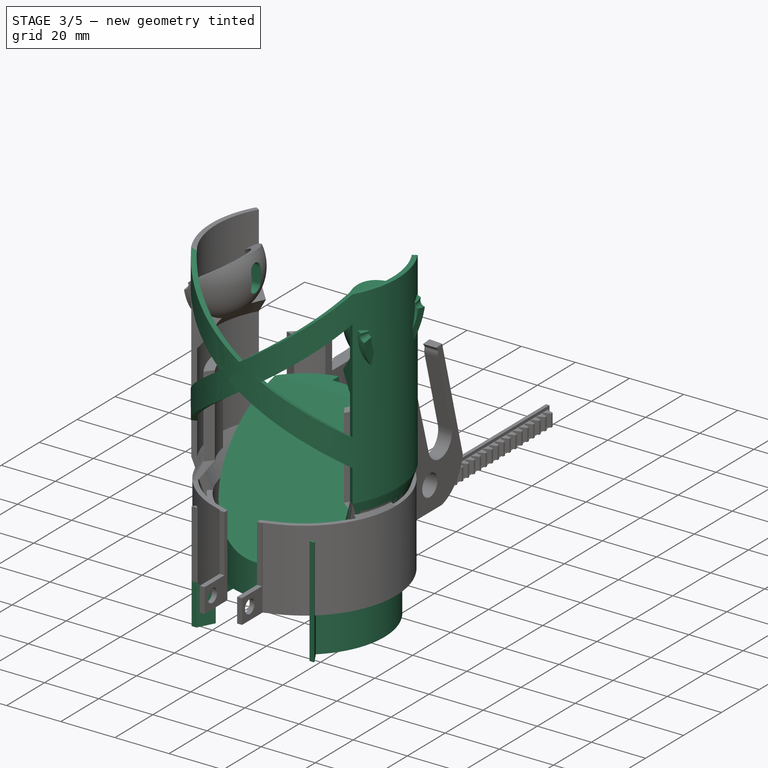
[diagram: stage 3 of 5 — iso view after this stage's code; geometry added in this stage tinted green]
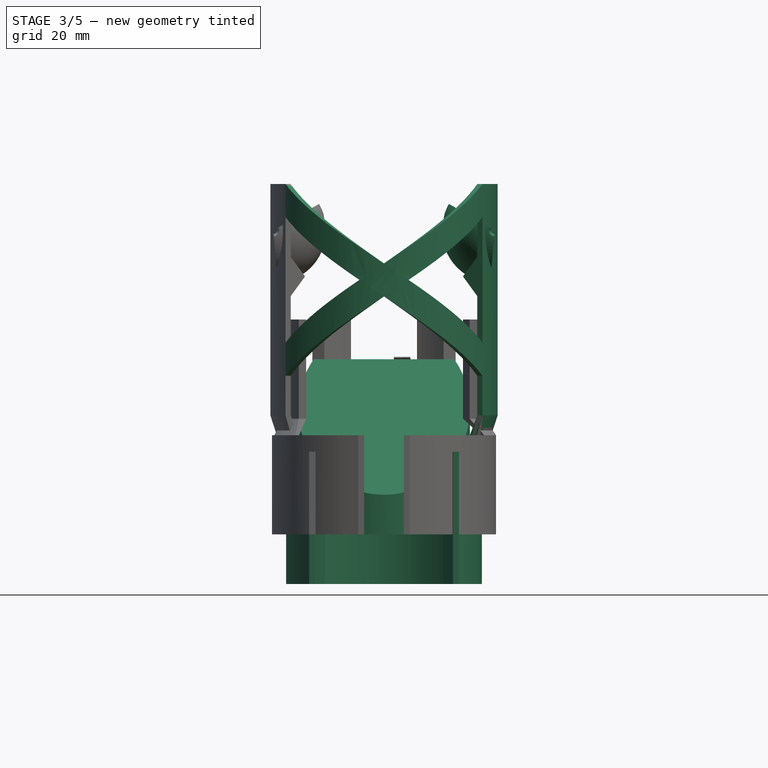
[diagram: stage 3 of 5 — front view after this stage's code; geometry added in this stage tinted green]
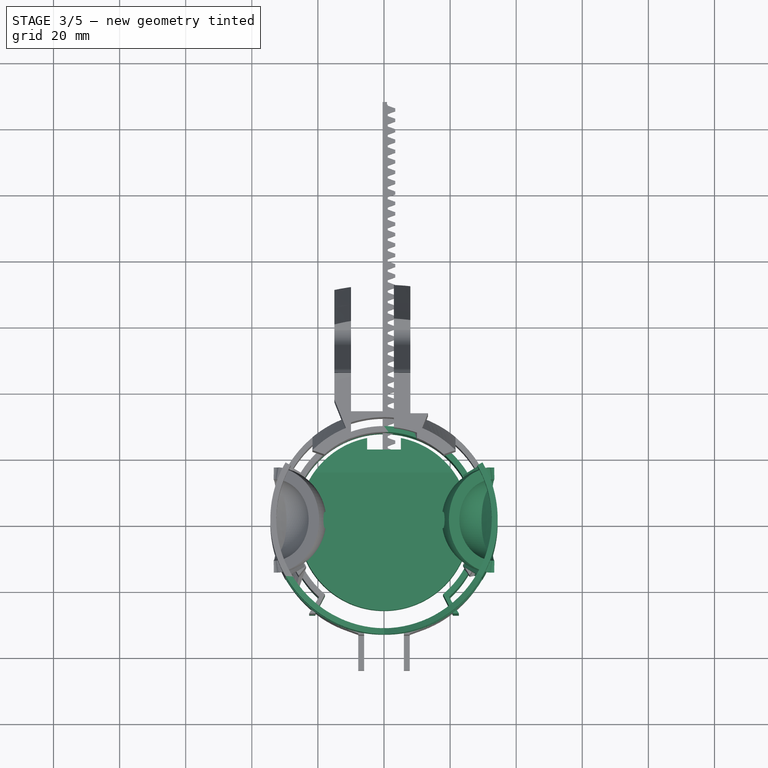
[diagram: stage 3 of 5 — top view after this stage's code; geometry added in this stage tinted green]
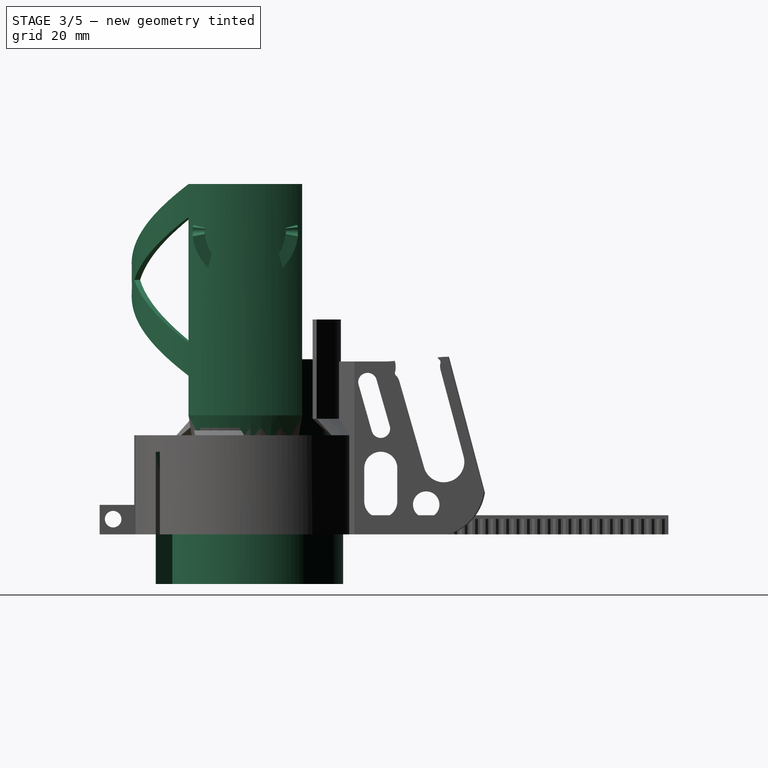
[diagram: stage 3 of 5 — right view after this stage's code; geometry added in this stage tinted green]
FEATURE [PartDesign::Body] Body015  label="Focuser-tube"
  Group = -> [Sketch052,Revolution025,Pad007,Sketch060,Sketch059,Sketch056,Sketch053,Sketch054,Sketch055,Pocket003,Sketch073,Sketch088,Revolution028,Mirrored012,Pocket015,Pad006,Pocket005,Groove003]
  Origin = -> Origin022
  Tip = -> Groove003
FEATURE [App::Part] Part006  label="Focuser tube"
  Group = -> [Body015]
  Origin = -> Origin021
  Placement = pos=(-184,0,0) rot=(0,0,1;0rad)
FEATURE [PartDesign::Plane] DatumPlane013
  Length = 76.5262
  Placement = pos=(0,0,35) rot=(1,0,0;0.785398rad)
  ResizeMode = 0
  Width = 120.579
FEATURE [PartDesign::Plane] DatumPlane014
  Length = 76.5262
  Placement = pos=(0,0,26.5) rot=(1,0,0;0.785398rad)
  ResizeMode = 0
  Support = -> [DatumPlane013]
  Width = 120.579
FEATURE [Sketcher::SketchObject] Sketch082
  FullyConstrained = true
  MapMode = 5
  Support = -> [XY_Plane036]
  expr: Constraints[1] = Spreadsheet.eyepiece_holder_radius - 0.4 - Spreadsheet.wall_thickness * 2
  sketch-geometry (4):
    g0: ArcOfCircle CenterX=0 CenterY=0 CenterZ=0 NormalX=0 NormalY=0 NormalZ=1 AngleXU=0 Radius=26 StartAngle=1.76823 EndAngle=7.65655
    g1: LineSegment StartX=-5.1 StartY=25.4949 StartZ=0 EndX=-5.1 EndY=21.9949 EndZ=0
    g2: LineSegment StartX=-5.1 StartY=21.9949 StartZ=0 EndX=5.1 EndY=21.9949 EndZ=0
    g3: LineSegment StartX=5.1 StartY=21.9949 StartZ=0 EndX=5.1 EndY=25.4949 EndZ=0
  constraints (11):
    c: Coincident(g0,g-1)
    c: Radius(g0) = 26
    c: Coincident(g1,g2)
    c: Coincident(g2,g3)
    c: Coincident(g3,g0)
    c: Vertical(g3)
    c: Vertical(g1)
    c: DistanceX(g2,g2) = 10.2
    c: Coincident(g1,g0)
    c: Symmetric(g1,g2,g-2)
    c: DistanceY(g1,g1) = 3.5
FEATURE [PartDesign::Pad] Pad019
  Direction = (0,0,1)
  Length = 55
  Length2 = 100
  Profile = -> Sketch082
  ReferenceAxis = -> Sketch082 [N_Axis]
  Type = 0
  expr: Length = 55 mm
FEATURE [Sketcher::SketchObject] Sketch083
  FullyConstrained = true
  MapMode = 5
  Placement = pos=(0,0,0) rot=(0.57735,0.57735,0.57735;2.0944rad)
  Support = -> [YZ_Plane036]
  expr: Constraints[3] = Spreadsheet.eyepiece_holder_radius
  sketch-geometry (5):
    g0: LineSegment StartX=30 StartY=63 StartZ=0 EndX=-30 EndY=63 EndZ=0
    g1: LineSegment StartX=-30 StartY=63 StartZ=0 EndX=-30 EndY=8 EndZ=0
    g2: LineSegment StartX=-30 StartY=8 StartZ=0 EndX=15 EndY=53 EndZ=0
    g3: LineSegment StartX=15 StartY=53 StartZ=0 EndX=30 EndY=53 EndZ=0
    g4: LineSegment StartX=30 StartY=53 StartZ=0 EndX=30 EndY=63 EndZ=0
  constraints (14):
    c: Coincident(g0,g1)
    c: Vertical(g1)
    c: Symmetric(g0,g0,g-2)
    c: DistanceX(g-1,g0) = 30
    c: DistanceY(g-1,g1) = 8
    c: Coincident(g2,g1)
    c: Coincident(g3,g2)
    c: Horizontal(g3)
    c: Coincident(g4,g3)
    c: Coincident(g4,g0)
    c: Vertical(g4)
    c: Angle(g2,g1) = 0.785398
    c: DistanceY(g1,g1) = 55
    c: DistanceY(g4,g4) = 10
FEATURE [PartDesign::Pocket] Pocket011
  BaseFeature = -> Pad019
  Direction = (-1,2e-16,-3e-16)
  Length = 5
  Length2 = 100
  Midplane = true
  Profile = -> Sketch083
  Type = 1
FEATURE [Sketcher::SketchObject] Sketch084
  FullyConstrained = true
  MapMode = 5
  Placement = pos=(0,0,35) rot=(1,0,0;0.785398rad)
  Support = -> [DatumPlane013]
  sketch-geometry (5):
    g0: Ellipse CenterX=0 CenterY=-5 CenterZ=0 NormalX=0 NormalY=0 NormalZ=1 MajorRadius=17.7 MinorRadius=12.7 AngleXU=-1.5708
    g1: LineSegment StartX=0 StartY=-22.7 StartZ=0 EndX=0 EndY=12.7 EndZ=0
    g2: LineSegment StartX=12.7 StartY=-5 StartZ=0 EndX=-12.7 EndY=-5 EndZ=0
    g3: GeomPoint X=1.4e-15 Y=-17.3288 Z=0
    g4: GeomPoint X=0 Y=7.32883 Z=0
  constraints (6):
    c: InternalAlignment(g1-g4 -> g0) x4
    c: DistanceX(g-1,g1) = 0
    c: DistanceY(g1,g1) = 35.4
    c: DistanceX(g2,g2) = 25.4
    c: DistanceY(g0,g-1) = 5
    c: DistanceX(g0,g-1) = 0
FEATURE [Sketcher::SketchObject] Sketch085
  FullyConstrained = true
  MapMode = 5
  Placement = pos=(0,0,26.5) rot=(1,0,0;0.785398rad)
  Support = -> [DatumPlane014]
  sketch-geometry (5):
    g0: Ellipse CenterX=0 CenterY=6.4 CenterZ=0 NormalX=0 NormalY=0 NormalZ=1 MajorRadius=18 MinorRadius=12.7 AngleXU=1.5708
    g1: LineSegment StartX=0 StartY=24.4 StartZ=0 EndX=0 EndY=-11.6 EndZ=0
    g2: LineSegment StartX=-12.7 StartY=6.4 StartZ=0 EndX=12.7 EndY=6.4 EndZ=0
    g3: GeomPoint X=1.4e-15 Y=19.1558 Z=0
    g4: GeomPoint X=0 Y=-6.35578 Z=0
  constraints (6):
    c: InternalAlignment(g1-g4 -> g0) x4
    c: DistanceX(g1) = 0
    c: DistanceY(g1,g1) = 36
    c: DistanceX(g2,g2) = 25.4
    c: DistanceY(g0,g-1) = -6.4
    c: PointOnObject(g0,g-2)
FEATURE [Sketcher::SketchObject] Sketch086
  FullyConstrained = true
  MapMode = 5
  Support = -> [XY_Plane036]
  expr: Constraints[18] = Spreadsheet.wall_thickness
  expr: Constraints[2] = Spreadsheet.eyepiece_holder_radius - 0.3 - Spreadsheet.wall_thickness * 3
  expr: Constraints[3] = Spreadsheet.eyepiece_holder_radius - 0.3 - Spreadsheet.wall_thickness * 5
  sketch-geometry (7):
    g0: ArcOfCircle CenterX=0 CenterY=0 CenterZ=0 NormalX=0 NormalY=0 NormalZ=1 AngleXU=0 Radius=24.3 StartAngle=6.15941 EndAngle=6.81685
    g1: ArcOfCircle CenterX=0 CenterY=0 CenterZ=0 NormalX=0 NormalY=0 NormalZ=1 AngleXU=0 Radius=20.7 StartAngle=6.13775 EndAngle=6.92314
    g2: LineSegment StartX=16.6039 StartY=12.3613 StartZ=0 EndX=20.921 EndY=12.3613 EndZ=0
    g3: LineSegment StartX=20.4815 StartY=-3 StartZ=0 EndX=20.2178 EndY=-4.8 EndZ=0
    g4: LineSegment StartX=20.2178 StartY=-4.8 StartZ=0 EndX=31.1141 EndY=-4.8 EndZ=0
    g5: LineSegment StartX=31.1141 StartY=-4.8 StartZ=0 EndX=31.1141 EndY=-3 EndZ=0
    g6: LineSegment StartX=31.1141 StartY=-3 StartZ=0 EndX=24.1141 EndY=-3 EndZ=0
  constraints (20):
    c: Coincident(g0,g-1)
    c: Coincident(g1,g0)
    c: Radius(g0) = 24.3
    c: Radius(g1) = 20.7
    c: Horizontal(g1,g0)
    c: Angle(g1) = 0.785398
    c: Horizontal(g1,g0)
    c: Coincident(g2,g1)
    c: Coincident(g2,g0)
    c: Tangent(g1,g3) = 1.5708
    c: Coincident(g3,g4)
    c: Horizontal(g4)
    c: Coincident(g4,g5)
    c: Vertical(g5)
    c: Coincident(g5,g6)
    c: Coincident(g6,g0)
    c: Horizontal(g6)
    c: DistanceX(g6,g6) = 7
    c: DistanceY(g5,g5) = 1.8
    c: DistanceY(g5,g-1) = 3
FEATURE [PartDesign::Pocket] Pocket012
  BaseFeature = -> Pocket011
  Direction = (0,0,-1)
  Length = 20
  Length2 = 100
  Profile = -> Sketch086
  Reversed = true
  Type = 0
FEATURE [PartDesign::Mirrored] Mirrored010
  BaseFeature = -> Pocket012
  MirrorPlane = -> Sketch086 [V_Axis]
  Originals = -> [Pocket012]
FEATURE [Sketcher::SketchObject] Sketch089
  FullyConstrained = true
  MapMode = 5
  Placement = pos=(0,0,0) rot=(1,0,0;1.5708rad)
  Support = -> [XZ_Plane036]
  expr: Constraints[11] = Spreadsheet.eyepiece_holder_radius - Spreadsheet.wall_thickness * 3
  sketch-geometry (4):
    g0: LineSegment StartX=24.6 StartY=7 StartZ=0 EndX=34.6 EndY=7 EndZ=0
    g1: LineSegment StartX=34.6 StartY=7 StartZ=0 EndX=34.6 EndY=2 EndZ=0
    g2: LineSegment StartX=34.6 StartY=2 StartZ=0 EndX=24.6 EndY=2 EndZ=0
    g3: LineSegment StartX=24.6 StartY=2 StartZ=0 EndX=24.6 EndY=7 EndZ=0
  constraints (12):
    c: Coincident(g0,g1)
    c: Coincident(g1,g2)
    c: Coincident(g2,g3)
    c: Coincident(g3,g0)
    c: Horizontal(g0)
    c: Horizontal(g2)
    c: Vertical(g1)
    c: Vertical(g3)
    c: DistanceY(g3,g3) = 5
    c: DistanceY(g-1,g1) = 2
    c: DistanceX(g0,g0) = 10
    c: DistanceX(g-1,g2) = 24.6
FEATURE [PartDesign::Groove] Groove004
  Angle = 5
  Axis = (0,-2e-16,1)
  Base = (0,0,0)
  BaseFeature = -> Mirrored010
  Midplane = true
  Profile = -> Sketch089
  ReferenceAxis = -> Sketch089 [V_Axis]
FEATURE [PartDesign::Pocket] Pocket021
  BaseFeature = -> Revolution030
  Direction = (-1,0,-2e-16)
  Length = 8
  Length2 = 5
  Midplane = true
  Profile = -> Sketch103
  ReferenceAxis = -> Sketch103 [N_Axis]
  Type = 0
FEATURE [PartDesign::ShapeBinder] ShapeBinder
  Placement = pos=(0,0,0) rot=(1,0,0;1.5708rad)
  Support = -> [Sketch101]
  TraceSupport = false
FEATURE [Sketcher::SketchObject] Sketch104
  ExternalGeometry = -> [Sketch101]
  FullyConstrained = true
  MapMode = 5
  Placement = pos=(0,0,0) rot=(1,0,0;1.5708rad)
  Support = -> [XZ_Plane040]
  expr: Constraints[9] = Spreadsheet.wall_thickness
  sketch-geometry (4):
    g0: LineSegment StartX=-32.6 StartY=36 StartZ=0 EndX=-34.4 EndY=36 EndZ=0
    g1: LineSegment StartX=-34.4 StartY=36 StartZ=0 EndX=-34.4 EndY=46 EndZ=0
    g2: LineSegment StartX=-34.4 StartY=46 StartZ=0 EndX=-32.6 EndY=46 EndZ=0
    g3: LineSegment StartX=-32.6 StartY=46 StartZ=0 EndX=-32.6 EndY=36 EndZ=0
  constraints (11):
    c: Coincident(g0,g1)
    c: Coincident(g1,g2)
    c: Coincident(g2,g3)
    c: Coincident(g3,g0)
    c: Horizontal(g0)
    c: Horizontal(g2)
    c: Vertical(g1)
    c: Vertical(g3)
    c: Coincident(g0,g-3)
    c: DistanceX(g2,g2) = 1.8
    c: DistanceY(g3,g3) = 10
FEATURE [PartDesign::AdditiveHelix] AdditiveHelix
  Angle = 0
  Axis = (0,-2e-16,1)
  Base = (0,0,0)
  BaseFeature = -> Pocket021
  Growth = 0
  HasBeenEdited = true
  Height = 60
  LeftHanded = false
  Mode = 0
  Outside = false
  Pitch = 144
  Profile = -> Sketch104
  ReferenceAxis = -> Sketch104 [V_Axis]
  Turns = 0.416667
FEATURE [PartDesign::Mirrored] Mirrored
  BaseFeature = -> AdditiveHelix
  MirrorPlane = -> YZ_Plane040
  Originals = -> [Pocket021,Revolution030,Revolution029,Revolution,Pad023]
FEATURE [PartDesign::Mirrored] Mirrored015
  BaseFeature = -> Mirrored
  MirrorPlane = -> Sketch104 [V_Axis]
  Originals = -> [AdditiveHelix]
FEATURE [PartDesign::Pad] Pad024
  BaseFeature = -> Mirrored015
  Direction = (0,0,1)
  Length = 15
  Length2 = 10
  Profile = -> Sketch100
  ReferenceAxis = -> Sketch100 [N_Axis]
  Reversed = true
  Type = 0
FEATURE [PartDesign::Mirrored] Mirrored016
  BaseFeature = -> Pad024
  MirrorPlane = -> Sketch100 [V_Axis]
  Originals = -> [Pad024]
FEATURE [PartDesign::Mirrored] Mirrored017
  BaseFeature = -> Mirrored016
  MirrorPlane = -> YZ_Plane040
  Originals = -> [Pocket021]
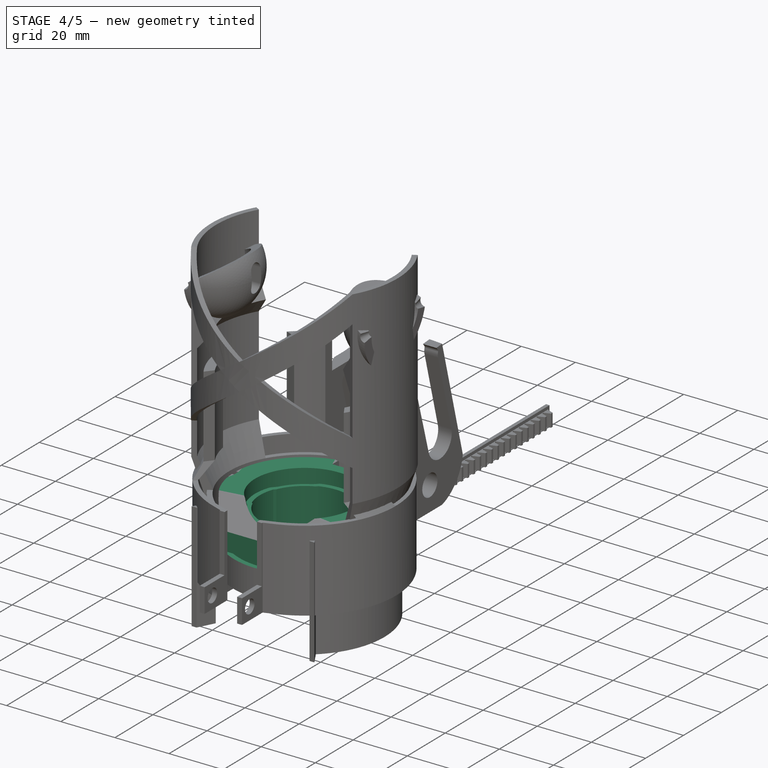
[diagram: stage 4 of 5 — iso view after this stage's code; geometry added in this stage tinted green]
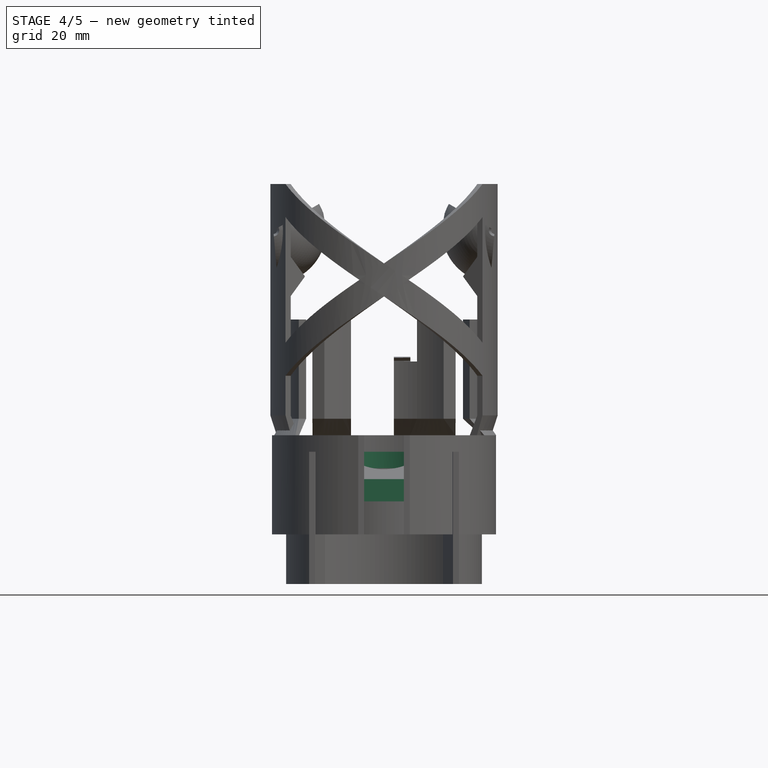
[diagram: stage 4 of 5 — front view after this stage's code; geometry added in this stage tinted green]
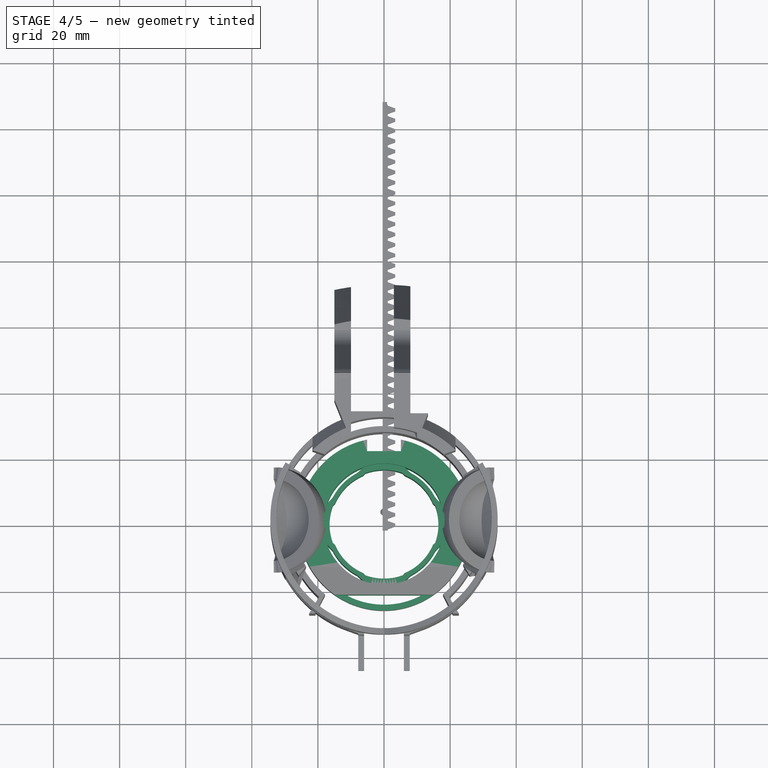
[diagram: stage 4 of 5 — top view after this stage's code; geometry added in this stage tinted green]
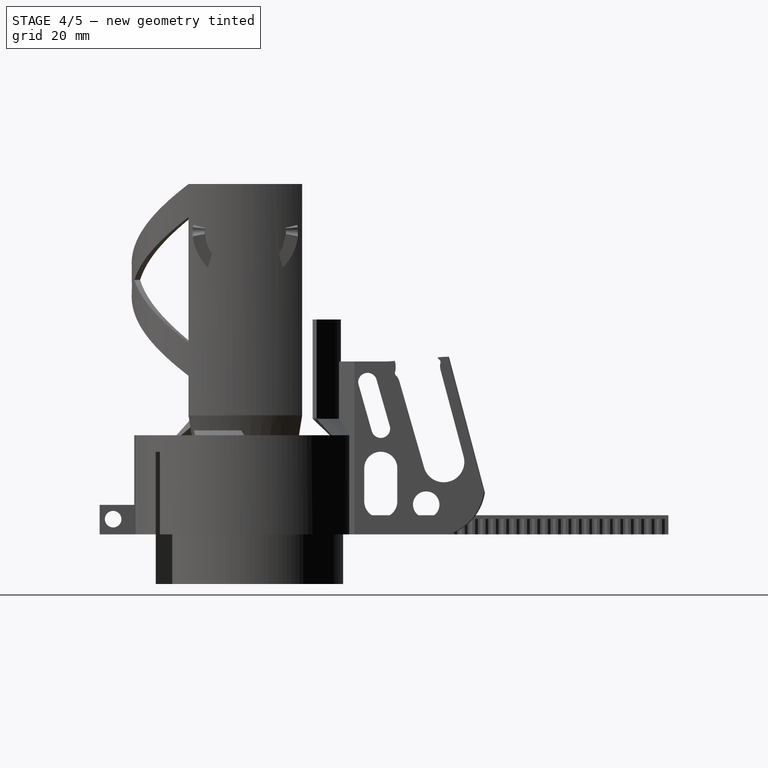
[diagram: stage 4 of 5 — right view after this stage's code; geometry added in this stage tinted green]
FEATURE [PartDesign::Mirrored] Mirrored013
  BaseFeature = -> Groove004
  MirrorPlane = -> Sketch089 [V_Axis]
  Originals = -> [Groove004]
FEATURE [Sketcher::SketchObject] Sketch090
  FullyConstrained = true
  MapMode = 5
  Support = -> [XY_Plane036]
  expr: Constraints[7] = -Spreadsheet.eyepiece_holder_radius + Spreadsheet.wall_thickness * 2 - 0.1
  sketch-geometry (4):
    g0: LineSegment StartX=-25 StartY=-21.3 StartZ=0 EndX=25 EndY=-21.3 EndZ=0
    g1: LineSegment StartX=25 StartY=-21.3 StartZ=0 EndX=25 EndY=-26.5 EndZ=0
    g2: LineSegment StartX=25 StartY=-26.5 StartZ=0 EndX=-25 EndY=-26.5 EndZ=0
    g3: LineSegment StartX=-25 StartY=-26.5 StartZ=0 EndX=-25 EndY=-21.3 EndZ=0
  constraints (11):
    c: Coincident(g0,g1)
    c: Coincident(g1,g2)
    c: Coincident(g2,g3)
    c: Coincident(g3,g0)
    c: Horizontal(g0)
    c: Vertical(g1)
    c: Vertical(g3)
    c: DistanceY(g1) = -26.5
    c: Symmetric(g2,g1,g-2)
    c: DistanceY(g1,g1) = 5.2
    c: DistanceX(g2,g2) = 50
FEATURE [PartDesign::Pocket] Pocket013
  BaseFeature = -> Mirrored013
  Direction = (0,0,-1)
  Length = 50
  Length2 = 100
  Profile = -> Sketch090
  Reversed = true
  Type = 0
FEATURE [Sketcher::SketchObject] Sketch091
  FullyConstrained = true
  MapMode = 5
  Placement = pos=(0,0,0) rot=(1,0,0;1.5708rad)
  Support = -> [XZ_Plane036]
  expr: Constraints[13] = Spreadsheet.eyepiece_holder_radius - 0.3 - Spreadsheet.wall_thickness * 2
  sketch-geometry (7):
    g0: LineSegment StartX=25.7 StartY=18 StartZ=0 EndX=24.7 EndY=33 EndZ=0
    g1: LineSegment StartX=24.7 StartY=33 StartZ=0 EndX=24.7 EndY=68 EndZ=0
    g2: LineSegment StartX=24.7 StartY=68 StartZ=0 EndX=36.1 EndY=68 EndZ=0
    g3: LineSegment StartX=36.1 StartY=68 StartZ=0 EndX=36.1 EndY=8 EndZ=0
    g4: LineSegment StartX=36.1 StartY=8 StartZ=0 EndX=26.1 EndY=8 EndZ=0
    g5: LineSegment StartX=25.7 StartY=18 StartZ=0 EndX=25.7 EndY=9 EndZ=0
    g6: LineSegment StartX=26.1 StartY=8 StartZ=0 EndX=25.7 EndY=9 EndZ=0
  constraints (21):
    c: Coincident(g0,g1)
    c: Vertical(g1)
    c: Coincident(g1,g2)
    c: Horizontal(g2)
    c: Coincident(g2,g3)
    c: Vertical(g3)
    c: Coincident(g3,g4)
    c: Horizontal(g4)
    c: DistanceX(g4,g4) = 10
    c: DistanceX(g0,g0) = 1
    c: DistanceY(g0,g0) = 15
    c: DistanceY(g4,g0) = 10
    c: DistanceY(g3,g3) = 60
    c: DistanceX(g-1,g4) = 26.1
    c: DistanceY(g-1,g3) = 8
    c: Coincident(g5,g0)
    c: Vertical(g5)
    c: DistanceX(g5,g4) = 0.4
    c: Coincident(g6,g4)
    c: Coincident(g6,g5)
    c: DistanceY(g5,g5) = 9
FEATURE [PartDesign::Groove] Groove005
  Angle = 5
  Axis = (0,-2e-16,1)
  Base = (0,0,0)
  BaseFeature = -> Pocket013
  Midplane = true
  Profile = -> Sketch091
  ReferenceAxis = -> Sketch091 [V_Axis]
FEATURE [PartDesign::Mirrored] Mirrored014
  BaseFeature = -> Groove005
  MirrorPlane = -> Sketch091 [V_Axis]
  Originals = -> [Groove005]
FEATURE [PartDesign::Body] Body022
  Group = -> [Sketch082,Pad019,Sketch083,Pocket011,DatumPlane013,DatumPlane014,Sketch084,Sketch085,Sketch086,Pocket012,Mirrored010,Sketch089,Groove004,Mirrored013,Sketch090,Pocket013,Sketch091,Groove005,Mirrored014,SubtractiveLoft]
  Origin = -> Origin036
  Tip = -> SubtractiveLoft
FEATURE [App::Part] Part013  label="mirror"
  Group = -> [Body022]
  Origin = -> Origin035
  Placement = pos=(-129,-113,0) rot=(0,0,1;0rad)
FEATURE [PartDesign::FeatureBase] Clone
  BaseFeature = -> Mirrored014
FEATURE [Sketcher::SketchObject] Sketch092
  FullyConstrained = true
  MapMode = 5
  Support = -> [XY_Plane]
  expr: Constraints[1] = Spreadsheet.eyepiece_radious + Spreadsheet.wall_thickness + Spreadsheet.gap
  sketch-geometry (1):
    g0: Circle CenterX=0 CenterY=0 CenterZ=0 NormalX=0 NormalY=0 NormalZ=1 AngleXU=0 Radius=18.275
  constraints (2):
    c: Coincident(g0,g-1)
    c: Radius(g0) = 18.275
FEATURE [PartDesign::Pocket] Pocket016
  BaseFeature = -> Clone
  Direction = (0,0,-1)
  Length = 55
  Length2 = 5
  Profile = -> Sketch092
  ReferenceAxis = -> Sketch092 [N_Axis]
  Reversed = true
  Type = 0
FEATURE [Sketcher::SketchObject] Sketch093
  FullyConstrained = true
  MapMode = 5
  Support = -> [XY_Plane]
  expr: Constraints[27] = Spreadsheet.wall_thickness
  expr: Constraints[29] = Spreadsheet.eyepiece_radious + 0.2
  expr: Constraints[30] = Spreadsheet.eyepiece_radious - 0.2 + Spreadsheet.wall_thickness
  expr: Constraints[33] = Spreadsheet.eyepiece_radious + Spreadsheet.wall_thickness + Spreadsheet.gap
  expr: Constraints[34] = Spreadsheet.eyepiece_radious + Spreadsheet.wall_thickness + Spreadsheet.gap
  sketch-geometry (12):
    g0: ArcOfCircle CenterX=0 CenterY=0 CenterZ=0 NormalX=0 NormalY=0 NormalZ=1 AngleXU=0 Radius=18.275 StartAngle=1.5708 EndAngle=1.91986
    g1: ArcOfCircle CenterX=0 CenterY=0 CenterZ=0 NormalX=0 NormalY=0 NormalZ=1 AngleXU=0 Radius=17.475 StartAngle=2.05312 EndAngle=2.65927
    g2: LineSegment StartX=-6.25042 StartY=17.1729 StartZ=0 EndX=-8.1056 EndY=15.4814 EndZ=0
    g3: LineSegment StartX=-15.4814 StartY=8.1056 StartZ=0 EndX=-17.1729 EndY=6.25042 EndZ=0
    g4: ArcOfCircle CenterX=0 CenterY=0 CenterZ=0 NormalX=0 NormalY=0 NormalZ=1 AngleXU=0 Radius=18.275 StartAngle=2.79253 EndAngle=3.14159
    g5: LineSegment StartX=-18.275 StartY=2.2e-15 StartZ=0 EndX=-16.475 EndY=2e-15 EndZ=0
    g6: LineSegment StartX=1.1e-15 StartY=18.275 StartZ=0 EndX=1e-15 EndY=16.475 EndZ=0
    g7: ArcOfCircle CenterX=0 CenterY=0 CenterZ=0 NormalX=0 NormalY=0 NormalZ=1 AngleXU=0 Radius=16.475 StartAngle=1.5708 EndAngle=1.91986
    g8: ArcOfCircle CenterX=0 CenterY=0 CenterZ=0 NormalX=0 NormalY=0 NormalZ=1 AngleXU=0 Radius=16.475 StartAngle=2.79253 EndAngle=3.14159
    g9: ArcOfCircle CenterX=0 CenterY=0 CenterZ=0 NormalX=0 NormalY=0 NormalZ=1 AngleXU=0 Radius=16.075 StartAngle=1.97016 EndAngle=2.74223
    g10: LineSegment StartX=-5.63478 StartY=15.4814 StartZ=0 EndX=-6.25042 EndY=14.8101 EndZ=0
    g11: LineSegment StartX=-15.4814 StartY=5.63478 StartZ=0 EndX=-14.8101 EndY=6.25042 EndZ=0
  constraints (36):
    c: Coincident(g0,g-1)
    c: PointOnObject(g0,g-2)
    c: Coincident(g1,g0)
    c: Coincident(g2,g0)
    c: Coincident(g2,g1)
    c: Coincident(g3,g1)
    c: Coincident(g4,g0)
    c: Coincident(g4,g3)
    c: PointOnObject(g4,g-1)
    c: Angle(g4) = 0.349066
    c: Angle(g0) = 0.349066
    c: Equal(g2,g3)
    c: Coincident(g5,g4)
    c: PointOnObject(g5,g-1)
    c: Coincident(g6,g0)
    c: PointOnObject(g6,g-2)
    c: Coincident(g7,g0)
    c: Coincident(g7,g6)
    c: Coincident(g8,g0)
    c: Coincident(g8,g5)
    c: Coincident(g9,g0)
    c: Coincident(g10,g7)
    c: Coincident(g10,g9)
    c: Coincident(g11,g8)
    c: Coincident(g11,g9)
    c: Angle(g8) = 0.349066
    c: Angle(g7) = 0.349066
    c: DistanceX(g5,g5) = 1.8
    c: Equal(g5,g6)
    c: Radius(g9) = 16.075
    c: Radius(g1) = 17.475
    c: Equal(g11,g10)
    c: Horizontal(g9,g3)
    c: Radius(g4) = 18.275
    c: Radius(g0) = 18.275
    c: Horizontal(g1,g7)
FEATURE [PartDesign::Pad] Pad
  BaseFeature = -> Pocket016
  Direction = (0,0,1)
  Length = 20
  Length2 = 10
  Profile = -> Sketch093
  ReferenceAxis = -> Sketch093 [N_Axis]
  Type = 0
FEATURE [PartDesign::PolarPattern] PolarPattern
  Angle = 360
  Axis = -> Z_Axis
  BaseFeature = -> Pad
  Occurrences = 4
  Originals = -> [Pad]
FEATURE [Sketcher::SketchObject] Sketch094
  FullyConstrained = true
  MapMode = 5
  Placement = pos=(0,0,0) rot=(0.57735,0.57735,0.57735;2.0944rad)
  Support = -> [YZ_Plane]
  sketch-geometry (4):
    g0: LineSegment StartX=-35 StartY=55 StartZ=0 EndX=35 EndY=55 EndZ=0
    g1: LineSegment StartX=35 StartY=55 StartZ=0 EndX=35 EndY=25 EndZ=0
    g2: LineSegment StartX=35 StartY=25 StartZ=0 EndX=-35 EndY=25 EndZ=0
    g3: LineSegment StartX=-35 StartY=25 StartZ=0 EndX=-35 EndY=55 EndZ=0
  constraints (11):
    c: Coincident(g0,g1)
    c: Coincident(g1,g2)
    c: Coincident(g2,g3)
    c: Coincident(g3,g0)
    c: Horizontal(g2)
    c: Vertical(g1)
    c: Vertical(g3)
    c: Symmetric(g0,g0,g-2)
    c: DistanceY(g-1,g1) = 25
    c: DistanceX(g0,g0) = 70
    c: DistanceY(g1,g1) = 30
FEATURE [PartDesign::Pocket] Pocket017
  BaseFeature = -> PolarPattern
  Direction = (-1,2e-16,-3e-16)
  Length = 5
  Length2 = 5
  Midplane = true
  Profile = -> Sketch094
  ReferenceAxis = -> Sketch094 [N_Axis]
  Type = 1
FEATURE [PartDesign::Body] Body023
  BaseFeature = -> Pocket015
  Group = -> [Clone001,Sketch095,Groove]
  Origin = -> Origin038
  Placement = pos=(-274,0,0) rot=(0,0,1;0rad)
  Tip = -> Groove
FEATURE [Sketcher::SketchObject] Sketch096
  FullyConstrained = true
  MapMode = 5
  Support = -> [XY_Plane]
  expr: Constraints[7] = Spreadsheet.eyepiece_holder_radius - 0.4 - Spreadsheet.wall_thickness * 2
  sketch-geometry (4):
    g0: LineSegment StartX=-5 StartY=26 StartZ=0 EndX=5 EndY=26 EndZ=0
    g1: LineSegment StartX=5 StartY=26 StartZ=0 EndX=5 EndY=22.5 EndZ=0
    g2: LineSegment StartX=5 StartY=22.5 StartZ=0 EndX=-5 EndY=22.5 EndZ=0
    g3: LineSegment StartX=-5 StartY=22.5 StartZ=0 EndX=-5 EndY=26 EndZ=0
  constraints (11):
    c: Coincident(g0,g1)
    c: Coincident(g1,g2)
    c: Coincident(g2,g3)
    c: Coincident(g3,g0)
    c: Horizontal(g2)
    c: Vertical(g1)
    c: Vertical(g3)
    c: DistanceY(g-1,g0) = 26
    c: DistanceY(g1,g1) = 3.5
    c: Symmetric(g0,g0,g-2)
    c: DistanceX(g0,g0) = 10
FEATURE [PartDesign::Pocket] Pocket018
  BaseFeature = -> Pocket017
  Direction = (0,0,-1)
  Length = 5
  Length2 = 5
  Midplane = true
  Profile = -> Sketch096
  ReferenceAxis = -> Sketch096 [N_Axis]
  Type = 1
FEATURE [Sketcher::SketchObject] Sketch097
  FullyConstrained = true
  MapMode = 5
  Support = -> [XY_Plane]
  expr: Constraints[1] = Spreadsheet.eyepiece_holder_radius - 0.4 - Spreadsheet.wall_thickness * 2
  expr: Constraints[4] = Spreadsheet.eyepiece_holder_radius - 0.4 - Spreadsheet.wall_thickness * 3
  sketch-geometry (4):
    g0: ArcOfCircle CenterX=0 CenterY=0 CenterZ=0 NormalX=0 NormalY=0 NormalZ=1 AngleXU=0 Radius=26 StartAngle=3.85996 EndAngle=5.56482
    g1: ArcOfCircle CenterX=0 CenterY=0 CenterZ=0 NormalX=0 NormalY=0 NormalZ=1 AngleXU=0 Radius=24.2 StartAngle=3.92699 EndAngle=5.49779
    g2: LineSegment StartX=-19.575 StartY=-17.112 StartZ=0 EndX=-17.112 EndY=-17.112 EndZ=0
    g3: LineSegment StartX=17.112 StartY=-17.112 StartZ=0 EndX=19.575 EndY=-17.112 EndZ=0
  constraints (12):
    c: Coincident(g0,g-1)
    c: Radius(g0) = 26
    c: Symmetric(g0,g0,g-2)
    c: Coincident(g1,g0)
    c: Radius(g1) = 24.2
    c: Horizontal(g1,g0)
    c: Horizontal(g1,g0)
    c: Coincident(g2,g0)
    c: Coincident(g2,g1)
    c: Coincident(g3,g1)
    c: Coincident(g3,g0)
    c: Angle(g1) = 1.5708
FEATURE [PartDesign::Pad] Pad020
  BaseFeature = -> Pocket018
  Direction = (0,0,1)
  Length = 10
  Length2 = 10
  Profile = -> Sketch097
  ReferenceAxis = -> Sketch097 [N_Axis]
  Type = 0
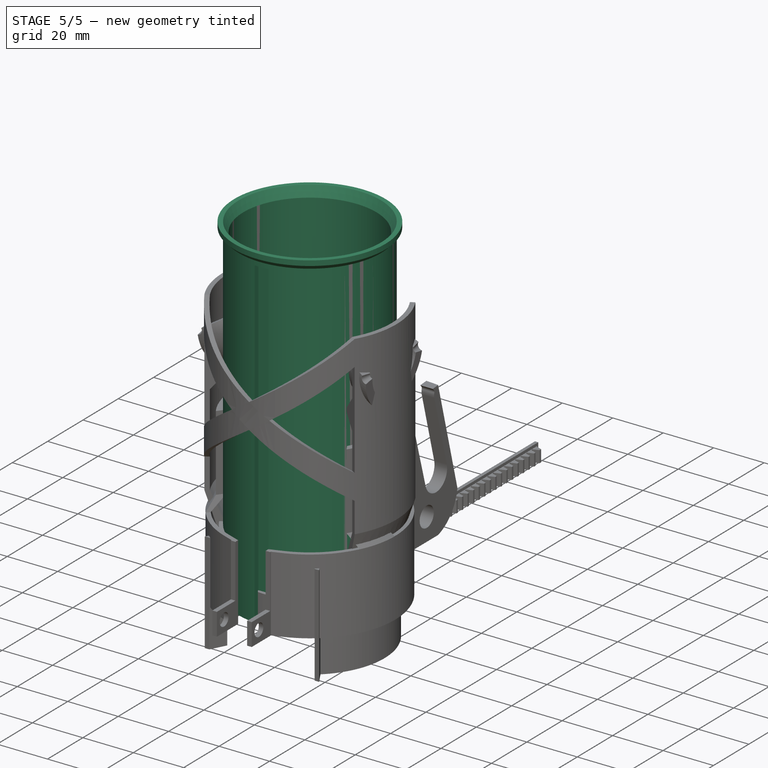
[diagram: stage 5 of 5 — iso view after this stage's code; geometry added in this stage tinted green]
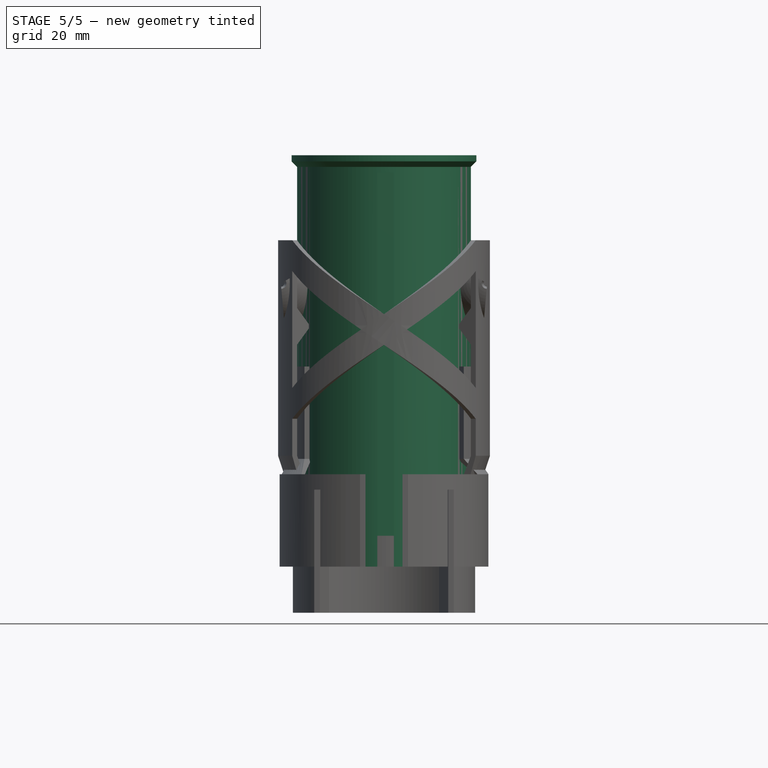
[diagram: stage 5 of 5 — front view after this stage's code; geometry added in this stage tinted green]
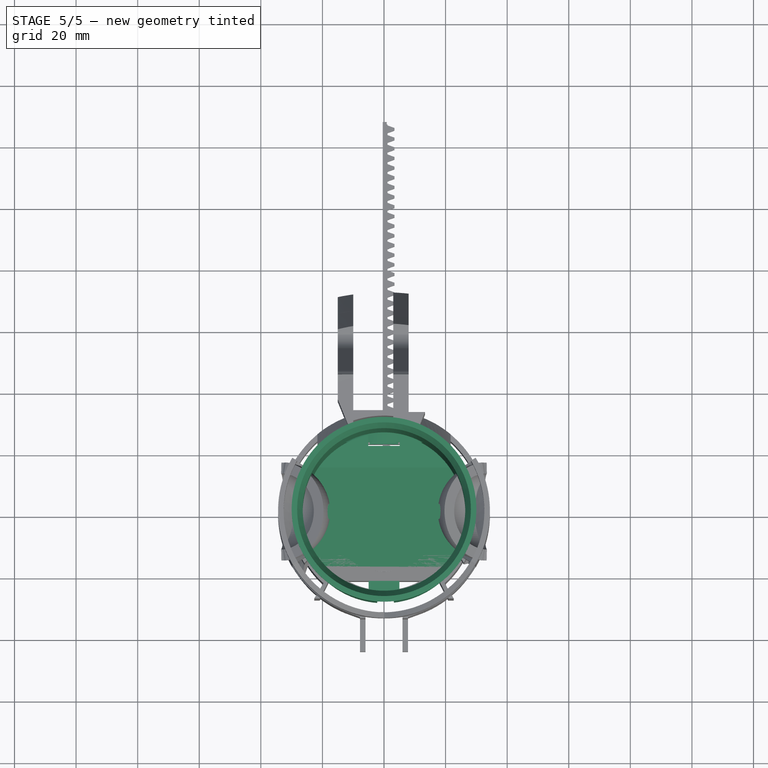
[diagram: stage 5 of 5 — top view after this stage's code; geometry added in this stage tinted green]
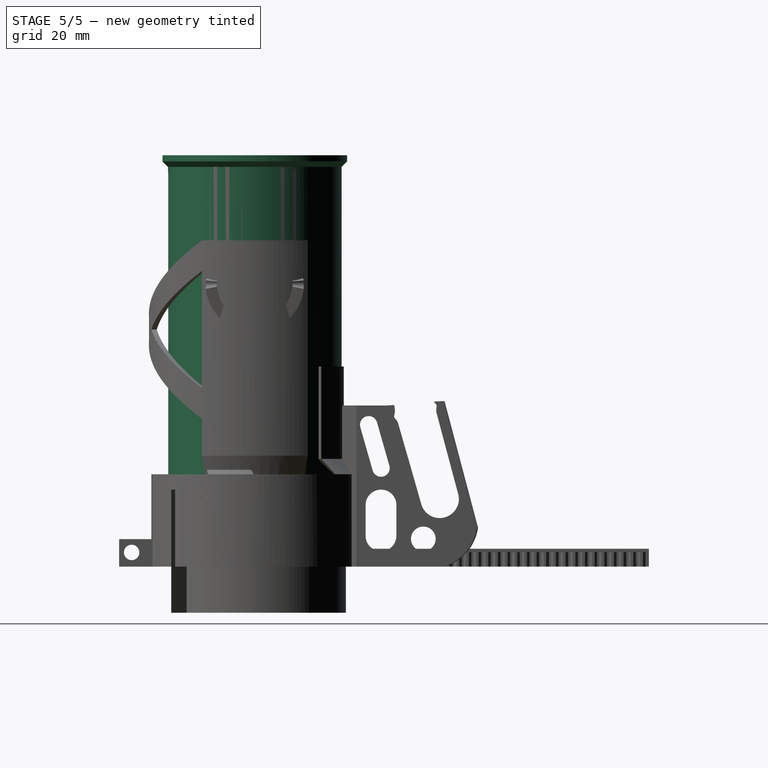
[diagram: stage 5 of 5 — right view after this stage's code; geometry added in this stage tinted green]
FEATURE [Sketcher::SketchObject] Sketch069
  FullyConstrained = true
  MapMode = 5
  Placement = pos=(0,0,0) rot=(1,0,0;1.5708rad)
  Support = -> [XZ_Plane030]
  sketch-geometry (1):
    g0: LineSegment StartX=0 StartY=0 StartZ=0 EndX=0 EndY=70 EndZ=0
  constraints (4):
    c: PointOnObject(g0,g-2)
    c: PointOnObject(g0,g-2)
    c: DistanceY(g-1,g0) = 0
    c: DistanceY(g0,g0) = 70
FEATURE [Sketcher::SketchObject] Sketch070
  FullyConstrained = true
  MapMode = 5
  Placement = pos=(0,0,35) rot=(0,0,1;0rad)
  Support = -> [DatumPlane012]
  expr: Constraints[8] = Spreadsheet.eyepiece_holder_radius - Spreadsheet.wall_thickness - 0.2
  expr: Constraints[9] = 12.3 / 2
  sketch-geometry (4):
    g0: ArcOfCircle CenterX=0 CenterY=0 CenterZ=0 NormalX=0 NormalY=0 NormalZ=1 AngleXU=0 Radius=28 StartAngle=1.16123 EndAngle=1.34935
    g1: LineSegment StartX=6.15 StartY=27.3162 StartZ=0 EndX=6.15 EndY=72.3162 EndZ=0
    g2: LineSegment StartX=6.15 StartY=72.3162 StartZ=0 EndX=11.15 EndY=72.3162 EndZ=0
    g3: LineSegment StartX=11.15 StartY=72.3162 StartZ=0 EndX=11.15 EndY=25.6842 EndZ=0
  constraints (12):
    c: Coincident(g0,g-1)
    c: Coincident(g1,g0)
    c: Vertical(g1)
    c: Coincident(g1,g2)
    c: Horizontal(g2)
    c: Coincident(g2,g3)
    c: Coincident(g3,g0)
    c: Vertical(g3)
    c: Radius(g0) = 28
    c: DistanceX(g-1,g1) = 6.15
    c: DistanceY(g1,g1) = 45
    c: DistanceX(g2,g2) = 5
FEATURE [Sketcher::SketchObject] Sketch071
  FullyConstrained = true
  MapMode = 5
  Placement = pos=(0,0,30) rot=(0,0,1;0rad)
  Support = -> [DatumPlane011]
  expr: Constraints[1] = 12.3 / 2
  expr: Constraints[2] = Spreadsheet.first_tube_section_radius - 0.2 + Spreadsheet.wall_thickness
  sketch-geometry (4):
    g0: ArcOfCircle CenterX=0 CenterY=0 CenterZ=0 NormalX=0 NormalY=0 NormalZ=1 AngleXU=0 Radius=34 StartAngle=1.23667 EndAngle=1.38891
    g1: LineSegment StartX=6.15 StartY=33.4392 StartZ=0 EndX=6.15 EndY=78.4392 EndZ=0
    g2: LineSegment StartX=6.15 StartY=78.4392 StartZ=0 EndX=11.15 EndY=78.4392 EndZ=0
    g3: LineSegment StartX=11.15 StartY=78.4392 StartZ=0 EndX=11.15 EndY=32.1197 EndZ=0
  constraints (12):
    c: Coincident(g0,g-1)
    c: DistanceX(g-1,g0) = 6.15
    c: Radius(g0) = 34
    c: Coincident(g0,g1)
    c: Coincident(g1,g2)
    c: Horizontal(g2)
    c: Coincident(g2,g3)
    c: Coincident(g3,g0)
    c: Vertical(g3)
    c: Vertical(g1)
    c: DistanceY(g1,g1) = 45
    c: DistanceX(g2,g2) = 5
FEATURE [Sketcher::SketchObject] Sketch072  label="focuser-gear"
  FullyConstrained = true
  MapMode = 5
  Placement = pos=(0,0,0) rot=(0.57735,0.57735,0.57735;2.0944rad)
  Support = -> [YZ_Plane030]
  expr: Constraints[1] = Spreadsheet.radious + Spreadsheet.wall_thickness + 13.4
  sketch-geometry (7):
    g0: ArcOfCircle CenterX=51.2 CenterY=53.9658 CenterZ=0 NormalX=0 NormalY=0 NormalZ=1 AngleXU=0 Radius=6.15 StartAngle=1.84075 EndAngle=3.41155
    g1: ArcOfCircle CenterX=60.0104 CenterY=21.9118 CenterZ=0 NormalX=0 NormalY=0 NormalZ=1 AngleXU=0 Radius=6.15 StartAngle=3.42085 EndAngle=4.99164
    g2: ArcOfCircle CenterX=39.2116 CenterY=50.6485 CenterZ=0 NormalX=0 NormalY=0 NormalZ=1 AngleXU=0 Radius=6.28887 StartAngle=6.02954 EndAngle=6.55314
    g3: ArcOfCircle CenterX=46.2727 CenterY=48.8181 CenterZ=0 NormalX=0 NormalY=0 NormalZ=1 AngleXU=0 Radius=1.00562 StartAngle=2.88795 EndAngle=3.93515
    g4: ArcOfCircle CenterX=42.7765 CenterY=45.2643 CenterZ=0 NormalX=0 NormalY=0 NormalZ=1 AngleXU=0 Radius=3.97961 StartAngle=0.269957 EndAngle=0.793556
    g5: LineSegment StartX=46.612 StartY=46.3257 StartZ=0 EndX=54.0987 EndY=20.2166 EndZ=0
    g6: LineSegment StartX=61.7056 StartY=16 StartZ=0 EndX=49.5599 EndY=59.8931 EndZ=0
  constraints (22):
    c: Radius(g0) = 6.15
    c: DistanceX(g-1,g0) = 51.2
    c: Radius(g1) = 6.15
    c: Angle(g1) = 1.5708
    c: Tangent(g2,g0) = 1.5708
    c: DistanceX(g0,g3) = 1
    c: Angle(g2) = 0.523599
    c: Tangent(g3,g2) = 1.5708
    c: Tangent(g4,g3) = 1.5708
    c: Coincident(g5,g4)
    c: Angle(g4) = 0.523599
    c: DistanceY(g4,g0) = 6
    c: Angle(g3) = 1.0472
    c: Distance(g4,g3) = 2.06
    c: Angle(g5,g-1) = 1.29154
    c: Distance(g1,g0) = 33.3
    c: Angle(g0) = 1.5708
    c: Tangent(g5,g1) = -1.5708
    c: Coincident(g6,g1)
    c: Coincident(g6,g0)
    c: Perpendicular(g0,g6)
    c: DistanceY(g-1,g1) = 16
FEATURE [Sketcher::SketchObject] Sketch081
  FullyConstrained = false
  MapMode = 5
  Placement = pos=(0,0,0) rot=(0.57735,0.57735,0.57735;2.0944rad)
  Support = -> [YZ_Plane030]
  expr: Constraints[8] = Spreadsheet.eypiece_outher_radius + Spreadsheet.wall_thickness
  sketch-geometry (4):
    g0: LineSegment StartX=-58.6 StartY=8.91924 StartZ=0 EndX=-33.6 EndY=8.91924 EndZ=0
    g1: LineSegment StartX=-33.6 StartY=8.91924 StartZ=0 EndX=-33.6 EndY=32.9192 EndZ=0
    g2: LineSegment StartX=-33.6 StartY=32.9192 StartZ=0 EndX=-58.6 EndY=32.9192 EndZ=0
    g3: LineSegment StartX=-58.6 StartY=32.9192 StartZ=0 EndX=-58.6 EndY=8.91924 EndZ=0
  constraints (11):
    c: Horizontal(g0)
    c: Vertical(g1)
    c: Coincident(g1,g2)
    c: Horizontal(g2)
    c: Coincident(g2,g3)
    c: Coincident(g3,g0)
    c: Vertical(g3)
    c: DistanceY(g1,g1) = 24
    c: DistanceX(g1,g-1) = 33.6
    c: Coincident(g0,g1)
    c: DistanceX(g0,g0) = 25
FEATURE [Sketcher::SketchObject] Sketch
  FullyConstrained = true
  MapMode = 5
  Placement = pos=(0,0,0) rot=(0.57735,0.57735,0.57735;2.0944rad)
  Support = -> [YZ_Plane030]
  expr: Constraints[1] = Spreadsheet.eyepiece_holder_radius + 10
  sketch-geometry (1):
    g0: Circle CenterX=-40 CenterY=4.6 CenterZ=0 NormalX=0 NormalY=0 NormalZ=1 AngleXU=0 Radius=2.5
  constraints (3):
    c: Radius(g0) = 2.5
    c: DistanceX(g0,g-1) = 40
    c: DistanceY(g-1,g0) = 4.6
FEATURE [Sketcher::SketchObject] Sketch052
  FullyConstrained = true
  MapMode = 5
  Placement = pos=(0,0,0) rot=(1,0,0;1.5708rad)
  Support = -> [XZ_Plane022]
  expr: Constraints[17] = Spreadsheet.focuser_tube_length
  expr: Constraints[20] = Spreadsheet.eyepiece_holder_radius
  expr: Constraints[6] = Spreadsheet.wall_thickness
  expr: Constraints[8] = Spreadsheet.snap_joint_angle
  sketch-geometry (7):
    g0: LineSegment StartX=-26.4 StartY=0 StartZ=0 EndX=-26.4 EndY=129.8 EndZ=0
    g1: LineSegment StartX=-28.2 StartY=129.8 StartZ=0 EndX=-28.2 EndY=0 EndZ=0
    g2: LineSegment StartX=-28.2 StartY=0 StartZ=0 EndX=-26.4 EndY=0 EndZ=0
    g3: LineSegment StartX=-30 StartY=131.6 StartZ=0 EndX=-28.2 EndY=129.8 EndZ=0
    g4: LineSegment StartX=-26.4 StartY=129.8 StartZ=0 EndX=-28.2 EndY=133.6 EndZ=0
    g5: LineSegment StartX=-30 StartY=131.6 StartZ=0 EndX=-30 EndY=133.6 EndZ=0
    g6: LineSegment StartX=-30 StartY=133.6 StartZ=0 EndX=-28.2 EndY=133.6 EndZ=0
  constraints (21):
    c: Vertical(g0)
    c: PointOnObject(g0,g-1)
    c: Vertical(g1)
    c: Coincident(g1,g2)
    c: Coincident(g2,g0)
    c: Horizontal(g2)
    c: DistanceX(g2,g2) = 1.8
    c: Coincident(g3,g1)
    c: Angle(g3,g1) = 2.35619
    c: Coincident(g4,g0)
    c: Coincident(g5,g3)
    c: Vertical(g5)
    c: Coincident(g6,g5)
    c: Horizontal(g6)
    c: DistanceY(g5,g5) = 2
    c: Coincident(g4,g6)
    c: Vertical(g4,g1)
    c: DistanceY(g1,g1) = 129.8
    c: Horizontal(g1,g0)
    c: Equal(g6,g2)
    c: DistanceX(g5,g-1) = 30
FEATURE [PartDesign::Revolution] Revolution025
  Angle = 360
  Axis = (0,-2e-16,1)
  Base = (0,0,0)
  Placement = pos=(0,0,0) rot=(1,0,0;1.5708rad)
  Profile = -> Sketch052
  ReferenceAxis = -> Sketch052 [V_Axis]
FEATURE [Sketcher::SketchObject] Sketch053
  AttachmentOffset = pos=(0,0,-15.9) rot=(0,0,1;0rad)
  FullyConstrained = true
  MapMode = 5
  Placement = pos=(0,15.9,3.5e-15) rot=(1,0,0;1.5708rad)
  Support = -> [XZ_Plane022]
  expr: .AttachmentOffset.Base.z = -Spreadsheet.eypiece_outher_radius * 0.5
  expr: Constraints[1] = Spreadsheet.eyepiece_radious + Spreadsheet.wall_thickness + 1
  expr: Constraints[2] = Spreadsheet.eyepiece_radious + 15
  sketch-geometry (1):
    g0: Circle CenterX=0 CenterY=30.875 CenterZ=0 NormalX=0 NormalY=0 NormalZ=1 AngleXU=0 Radius=18.675
  constraints (3):
    c: PointOnObject(g0,g-2)
    c: Radius(g0) = 18.675
    c: DistanceY(g-1,g0) = 30.875
FEATURE [Sketcher::SketchObject] Sketch054
  FullyConstrained = true
  MapMode = 5
  Placement = pos=(0,0,0) rot=(0.57735,0.57735,0.57735;2.0944rad)
  Support = -> [YZ_Plane022]
  expr: Constraints[2] = Spreadsheet.eyepiece_holder_radius
  expr: Constraints[3] = Spreadsheet.eyepiece_holder_radius - Spreadsheet.wall_thickness
  sketch-geometry (3):
    g0: LineSegment StartX=-28.2 StartY=58.2 StartZ=0 EndX=30 EndY=0 EndZ=0
    g1: LineSegment StartX=-28.2 StartY=58.2 StartZ=0 EndX=-28.2 EndY=0 EndZ=0
    g2: LineSegment StartX=30 StartY=0 StartZ=0 EndX=-28.2 EndY=0 EndZ=0
  constraints (9):
    c: PointOnObject(g0,g-1)
    c: Angle(g0,g-1) = 0.785398
    c: DistanceX(g-1,g0) = 30
    c: DistanceX(g0,g-1) = 28.2
    c: Coincident(g1,g0)
    c: PointOnObject(g1,g-1)
    c: Vertical(g1)
    c: Coincident(g2,g0)
    c: Coincident(g2,g1)
FEATURE [Sketcher::SketchObject] Sketch055
  FullyConstrained = true
  MapMode = 5
  Placement = pos=(0,0,0) rot=(1,0,0;1.5708rad)
  Support = -> [XZ_Plane022]
  expr: Constraints[11] = Spreadsheet.focuser_tube_length
  expr: Constraints[9] = Spreadsheet.eyepiece_holder_radius - Spreadsheet.wall_thickness
  sketch-geometry (4):
    g0: LineSegment StartX=-28.2 StartY=0 StartZ=0 EndX=-28.2 EndY=129.8 EndZ=0
    g1: LineSegment StartX=-28.2 StartY=129.8 StartZ=0 EndX=-43.2 EndY=129.8 EndZ=0
    g2: LineSegment StartX=-43.2 StartY=129.8 StartZ=0 EndX=-43.2 EndY=0 EndZ=0
    g3: LineSegment StartX=-43.2 StartY=0 StartZ=0 EndX=-28.2 EndY=0 EndZ=0
  constraints (12):
    c: PointOnObject(g0,g-1)
    c: Vertical(g0)
    c: Coincident(g0,g1)
    c: Horizontal(g1)
    c: Coincident(g1,g2)
    c: PointOnObject(g2,g-1)
    c: Vertical(g2)
    c: Coincident(g2,g3)
    c: Coincident(g3,g0)
    c: DistanceX(g0,g-1) = 28.2
    c: DistanceX(g1,g1) = 15
    c: DistanceY(g2,g2) = 129.8
FEATURE [Sketcher::SketchObject] Sketch056
  AttachmentOffset = pos=(0,0,-28.3) rot=(0,0,1;0rad)
  FullyConstrained = true
  MapMode = 5
  Placement = pos=(0,28.3,6.3e-15) rot=(1,0,0;1.5708rad)
  Support = -> [XZ_Plane022]
  expr: .AttachmentOffset.Base.z = -Spreadsheet.eyepiece_holder_radius + Spreadsheet.wall_thickness - 0.1
  expr: Constraints[0] = Spreadsheet.eyepiece_radious + 15
  expr: Constraints[3] = Spreadsheet.eyepiece_radious + Spreadsheet.wall_thickness * 2 + 1
  sketch-geometry (4):
    g0: ArcOfCircle CenterX=0 CenterY=30.875 CenterZ=0 NormalX=0 NormalY=0 NormalZ=1 AngleXU=0 Radius=20.475 StartAngle=0 EndAngle=3.14159
    g1: LineSegment StartX=-20.475 StartY=30.875 StartZ=0 EndX=-20.475 EndY=0 EndZ=0
    g2: LineSegment StartX=-20.475 StartY=0 StartZ=0 EndX=20.475 EndY=0 EndZ=0
    g3: LineSegment StartX=20.475 StartY=0 StartZ=0 EndX=20.475 EndY=30.875 EndZ=0
  constraints (13):
    c: DistanceY(g-1,g0) = 30.875
    c: Horizontal(g0,g0)
    c: Horizontal(g0,g0)
    c: Radius(g0) = 20.475
    c: PointOnObject(g0,g-2)
    c: Coincident(g1,g0)
    c: Vertical(g1)
    c: Coincident(g1,g2)
    c: Horizontal(g2)
    c: Coincident(g2,g3)
    c: Coincident(g3,g0)
    c: Vertical(g3)
    c: PointOnObject(g2,g-1)
FEATURE [Sketcher::SketchObject] Sketch059
  FullyConstrained = true
  MapMode = 5
  Support = -> [XY_Plane022]
  expr: Constraints[10] = Spreadsheet.eyepiece_holder_radius - 5 - Spreadsheet.wall_thickness
  sketch-geometry (4):
    g0: LineSegment StartX=-5 StartY=-33.2 StartZ=0 EndX=5 EndY=-33.2 EndZ=0
    g1: LineSegment StartX=5 StartY=-33.2 StartZ=0 EndX=5 EndY=-23.2 EndZ=0
    g2: LineSegment StartX=5 StartY=-23.2 StartZ=0 EndX=-5 EndY=-23.2 EndZ=0
    g3: LineSegment StartX=-5 StartY=-23.2 StartZ=0 EndX=-5 EndY=-33.2 EndZ=0
  constraints (11):
    c: Coincident(g0,g1)
    c: Coincident(g1,g2)
    c: Coincident(g2,g3)
    c: Coincident(g3,g0)
    c: Horizontal(g0)
    c: Vertical(g1)
    c: Vertical(g3)
    c: DistanceY(g3,g3) = 10
    c: DistanceX(g0,g0) = 10
    c: Symmetric(g2,g1,g-2)
    c: DistanceY(g1,g-1) = 23.2
FEATURE [PartDesign::Pad] Pad007
  BaseFeature = -> Revolution025
  Direction = (0,0,1)
  Length = 129.8
  Length2 = 100
  Placement = pos=(0,0,0) rot=(1,0,0;1.5708rad)
  Profile = -> Sketch059
  Type = 0
  expr: Length = Spreadsheet.focuser_tube_length
FEATURE [Sketcher::SketchObject] Sketch060
  FullyConstrained = true
  MapMode = 5
  Support = -> [XY_Plane022]
  expr: Constraints[5] = 10 - Spreadsheet.wall_thickness * 2
  expr: Constraints[9] = Spreadsheet.eyepiece_holder_radius - Spreadsheet.wall_thickness * 2 - 0.1
  sketch-geometry (7):
    g0: LineSegment StartX=-3.2 StartY=-24.6 StartZ=0 EndX=3.2 EndY=-24.6 EndZ=0
    g1: LineSegment StartX=3.2 StartY=-24.6 StartZ=0 EndX=3.2 EndY=-26.3 EndZ=0
    g2: LineSegment StartX=-3.2 StartY=-26.3 StartZ=0 EndX=-3.2 EndY=-24.6 EndZ=0
    g3: LineSegment StartX=-2.2 StartY=-28.3 StartZ=0 EndX=3.2 EndY=-28.3 EndZ=0
    g4: LineSegment StartX=-3.2 StartY=-26.3 StartZ=0 EndX=-2.2 EndY=-26.3 EndZ=0
    g5: LineSegment StartX=-2.2 StartY=-28.3 StartZ=0 EndX=-2.2 EndY=-26.3 EndZ=0
    g6: LineSegment StartX=3.2 StartY=-28.3 StartZ=0 EndX=3.2 EndY=-26.3 EndZ=0
  constraints (20):
    c: Coincident(g0,g1)
    c: Coincident(g2,g0)
    c: Vertical(g1)
    c: Vertical(g2)
    c: Symmetric(g0,g0,g-2)
    c: DistanceX(g0,g0) = 6.4
    c: Horizontal(g2,g1)
    c: Horizontal(g3)
    c: DistanceY(g3,g2) = 2
    c: DistanceY(g1,g-1) = 26.3
    c: Coincident(g4,g2)
    c: Horizontal(g4)
    c: Coincident(g5,g3)
    c: Coincident(g5,g4)
    c: Vertical(g3,g4)
    c: DistanceX(g4,g4) = 1
    c: Coincident(g6,g3)
    c: Coincident(g6,g1)
    c: Vertical(g6)
    c: DistanceY(g2,g2) = 1.7
FEATURE [PartDesign::Pocket] Pocket003
  BaseFeature = -> Pad007
  Direction = (0,0,-1)
  Length = 128
  Length2 = 100
  Placement = pos=(0,0,0) rot=(1,0,0;1.5708rad)
  Profile = -> Sketch060
  Reversed = true
  Type = 0
  expr: Length = Spreadsheet.focuser_tube_length - Spreadsheet.wall_thickness
FEATURE [Sketcher::SketchObject] Sketch073
  FullyConstrained = true
  MapMode = 2
  Placement = pos=(0,0,0) rot=(1,0,0;1.5708rad)
  Support = -> [XZ_Plane022]
  sketch-geometry (4):
    g0: LineSegment StartX=-1.05 StartY=5.1 StartZ=0 EndX=1.05 EndY=5.1 EndZ=0
    g1: LineSegment StartX=1.05 StartY=5.1 StartZ=0 EndX=1.05 EndY=3 EndZ=0
    g2: LineSegment StartX=1.05 StartY=3 StartZ=0 EndX=-1.05 EndY=3 EndZ=0
    g3: LineSegment StartX=-1.05 StartY=3 StartZ=0 EndX=-1.05 EndY=5.1 EndZ=0
  constraints (11):
    c: Coincident(g0,g1)
    c: Coincident(g1,g2)
    c: Coincident(g2,g3)
    c: Coincident(g3,g0)
    c: Horizontal(g2)
    c: Vertical(g1)
    c: Vertical(g3)
    c: DistanceY(g-1,g1) = 3
    c: DistanceX(g0,g0) = 2.1
    c: Equal(g0,g1)
    c: Symmetric(g0,g0,g-2)
FEATURE [Sketcher::SketchObject] Sketch088
  FullyConstrained = true
  MapMode = 5
  Placement = pos=(0,0,0) rot=(1,0,0;1.5708rad)
  Support = -> [XZ_Plane022]
  expr: Constraints[10] = Spreadsheet.eyepiece_holder_radius - Spreadsheet.wall_thickness
  expr: Constraints[9] = Spreadsheet.wall_thickness * 2
  sketch-geometry (4):
    g0: LineSegment StartX=-28.2 StartY=6.7 StartZ=0 EndX=-28.2 EndY=0.521292 EndZ=0
    g1: LineSegment StartX=-28.2 StartY=0.521292 StartZ=0 EndX=-24.6 EndY=2.2 EndZ=0
    g2: LineSegment StartX=-24.6 StartY=2.2 StartZ=0 EndX=-24.6 EndY=6.7 EndZ=0
    g3: LineSegment StartX=-24.6 StartY=6.7 StartZ=0 EndX=-28.2 EndY=6.7 EndZ=0
  constraints (12):
    c: Vertical(g0)
    c: Coincident(g0,g1)
    c: Coincident(g1,g2)
    c: Vertical(g2)
    c: Coincident(g2,g3)
    c: Coincident(g3,g0)
    c: Horizontal(g3)
    c: Angle(g1,g0) = 1.13446
    c: DistanceY(g2,g2) = 4.5
    c: DistanceX(g3,g3) = 3.6
    c: DistanceX(g0,g-1) = 28.2
    c: DistanceY(g-1,g1) = 2.2
FEATURE [PartDesign::Revolution] Revolution028
  Angle = 4
  Axis = (0,-2e-16,1)
  Base = (0,0,0)
  BaseFeature = -> Pocket003
  Midplane = true
  Placement = pos=(0,0,0) rot=(1,0,0;1.5708rad)
  Profile = -> Sketch088
  ReferenceAxis = -> Sketch088 [V_Axis]
FEATURE [PartDesign::Mirrored] Mirrored012
  BaseFeature = -> Revolution028
  MirrorPlane = -> Sketch088 [V_Axis]
  Originals = -> [Revolution028]
  Placement = pos=(0,0,0) rot=(1,0,0;1.5708rad)
FEATURE [PartDesign::Pocket] Pocket015
  BaseFeature = -> Mirrored012
  Direction = (0,1,2e-16)
  Length = 31.8
  Length2 = 100
  Placement = pos=(0,0,0) rot=(1,0,0;1.5708rad)
  Profile = -> Sketch073
  ReferenceAxis = -> Sketch073 [N_Axis]
  Reversed = true
  Type = 1
  expr: Length = Spreadsheet.eypiece_outher_radius
FEATURE [PartDesign::Pad] Pad006
  BaseFeature = -> Pocket015
  Direction = (0,-1,-2e-16)
  Length = 5.1
  Length2 = 100
  Placement = pos=(0,0,0) rot=(1,0,0;1.5708rad)
  Profile = -> Sketch056
  Type = 0
FEATURE [PartDesign::Pocket] Pocket005
  BaseFeature = -> Pad006
  Direction = (0,1,2e-16)
  Length = 5
  Length2 = 100
  Placement = pos=(0,0,0) rot=(1,0,0;1.5708rad)
  Profile = -> Sketch053
  Type = 1
FEATURE [PartDesign::Groove] Groove003
  Angle = 360
  Axis = (0,-2e-16,1)
  Base = (0,0,0)
  BaseFeature = -> Pocket005
  Placement = pos=(0,0,0) rot=(1,0,0;1.5708rad)
  Profile = -> Sketch055
  ReferenceAxis = -> Sketch055 [V_Axis]
  Reversed = true
FEATURE [PartDesign::SubtractiveLoft] SubtractiveLoft
  BaseFeature = -> Mirrored014
  Closed = false
  Profile = -> Sketch084
  Ruled = false
  Sections = -> [Sketch085]
FEATURE [PartDesign::FeatureBase] Clone001
  BaseFeature = -> Pocket015
  Placement = pos=(0,0,0) rot=(1,0,0;1.5708rad)
FEATURE [Sketcher::SketchObject] Sketch095
  FullyConstrained = true
  MapMode = 5
  Placement = pos=(0,0,0) rot=(1,0,0;1.5708rad)
  Support = -> [XZ_Plane038]
  expr: Constraints[10] = Spreadsheet.eyepiece_holder_radius - Spreadsheet.wall_thickness
  expr: Constraints[7] = Spreadsheet.focuser_tube_length
  sketch-geometry (4):
    g0: LineSegment StartX=-48.2 StartY=129.8 StartZ=0 EndX=-28.2 EndY=129.8 EndZ=0
    g1: LineSegment StartX=-28.2 StartY=129.8 StartZ=0 EndX=-28.2 EndY=0 EndZ=0
    g2: LineSegment StartX=-28.2 StartY=0 StartZ=0 EndX=-48.2 EndY=0 EndZ=0
    g3: LineSegment StartX=-48.2 StartY=0 StartZ=0 EndX=-48.2 EndY=129.8 EndZ=0
  constraints (12):
    c: Coincident(g0,g1)
    c: Coincident(g1,g2)
    c: Coincident(g2,g3)
    c: Coincident(g3,g0)
    c: Horizontal(g0)
    c: Vertical(g1)
    c: Vertical(g3)
    c: DistanceY(g3,g3) = 129.8
    c: PointOnObject(g2,g-1)
    c: Horizontal(g2)
    c: DistanceX(g1,g-1) = 28.2
    c: DistanceX(g2,g2) = 20
FEATURE [PartDesign::Groove] Groove
  Angle = 360
  Axis = (0,-2e-16,1)
  Base = (0,0,0)
  BaseFeature = -> Clone001
  Placement = pos=(0,0,0) rot=(1,0,0;1.5708rad)
  Profile = -> Sketch095
  ReferenceAxis = -> Sketch095 [V_Axis]
  Reversed = true
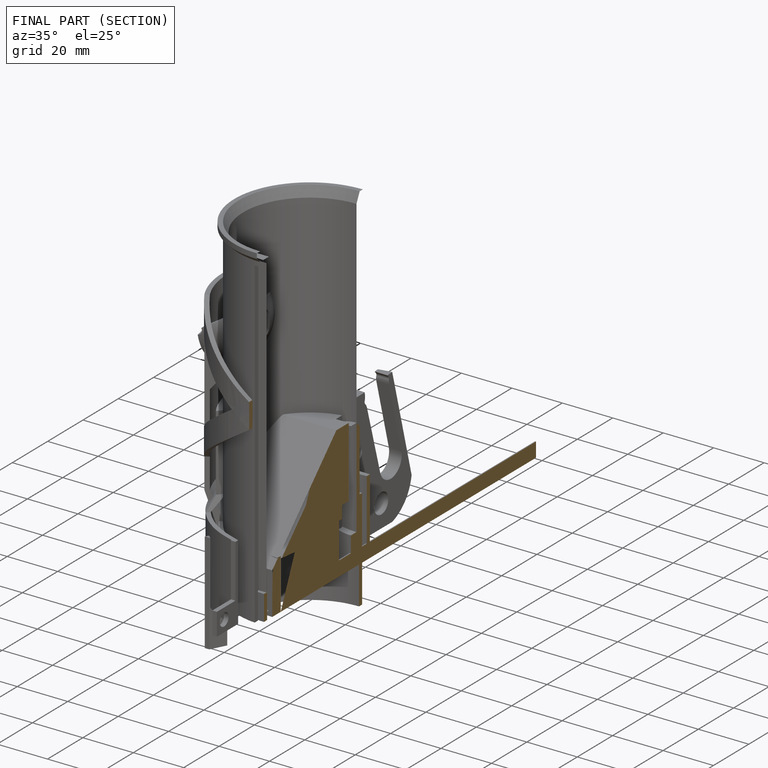
[diagram: finished part — half-section view (interior)]
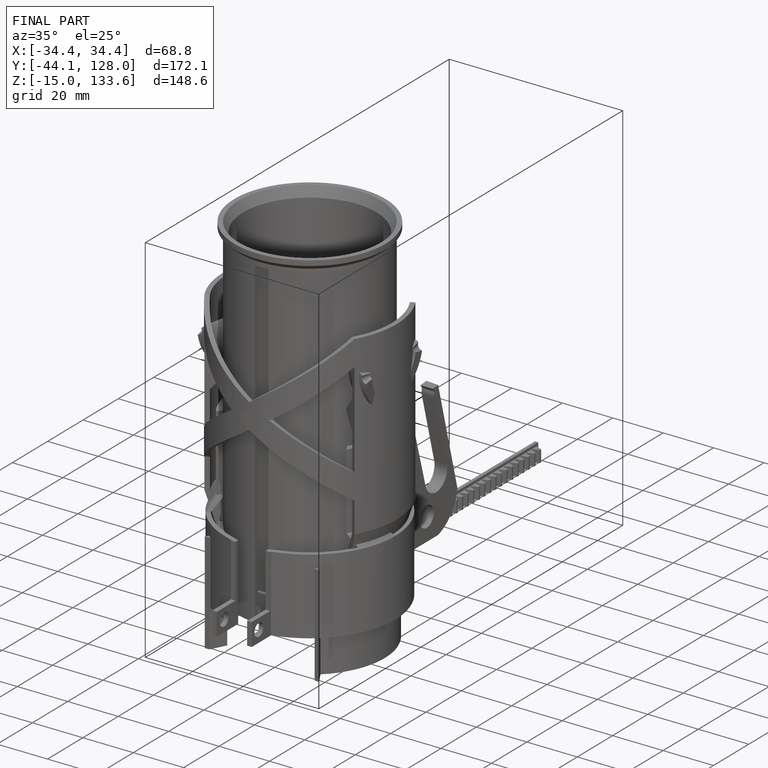
[diagram: finished part — iso view with bounding-box wireframe]
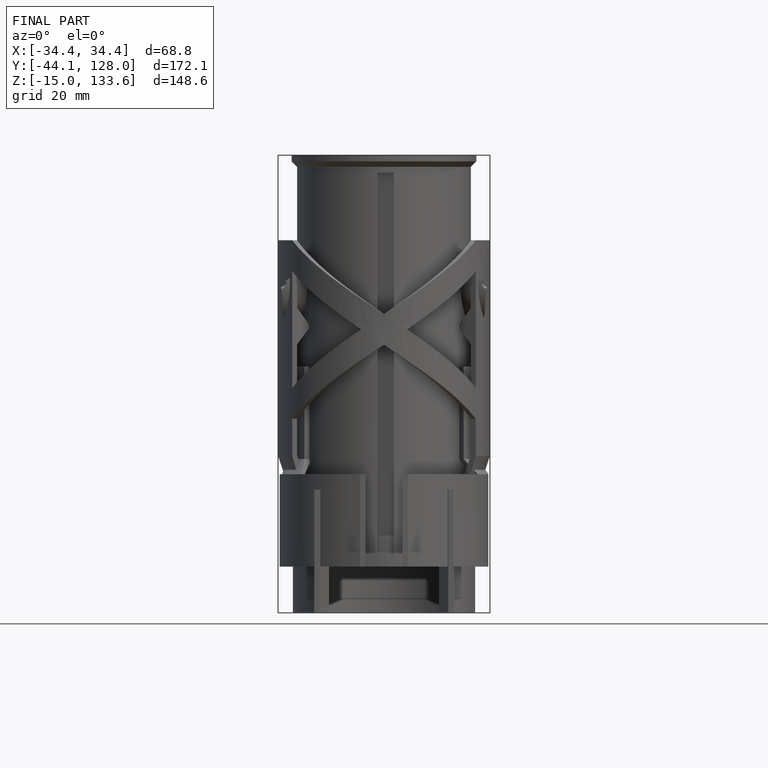
[diagram: finished part — front view with bounding-box wireframe]
